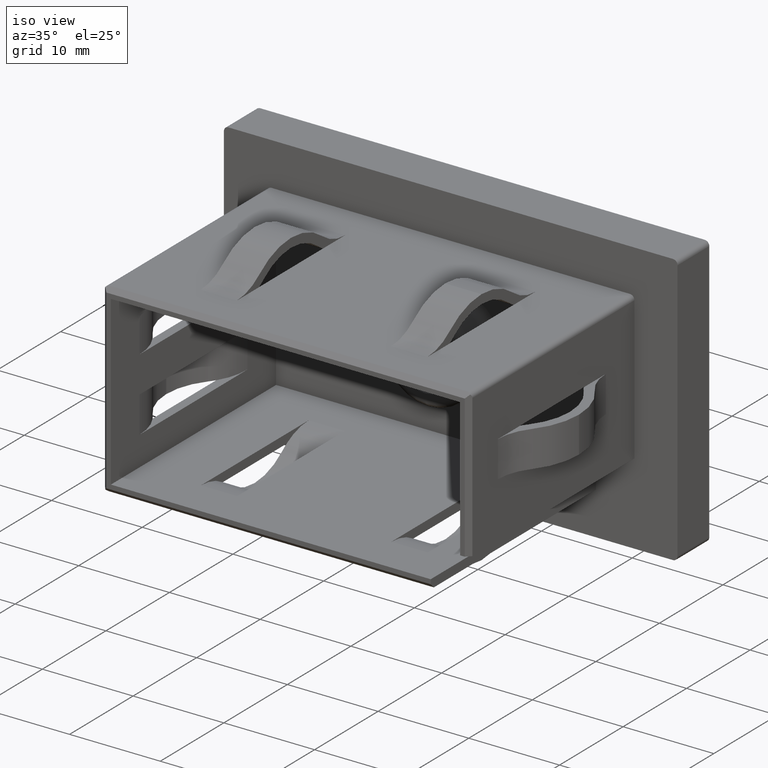
[diagram: clean part render]
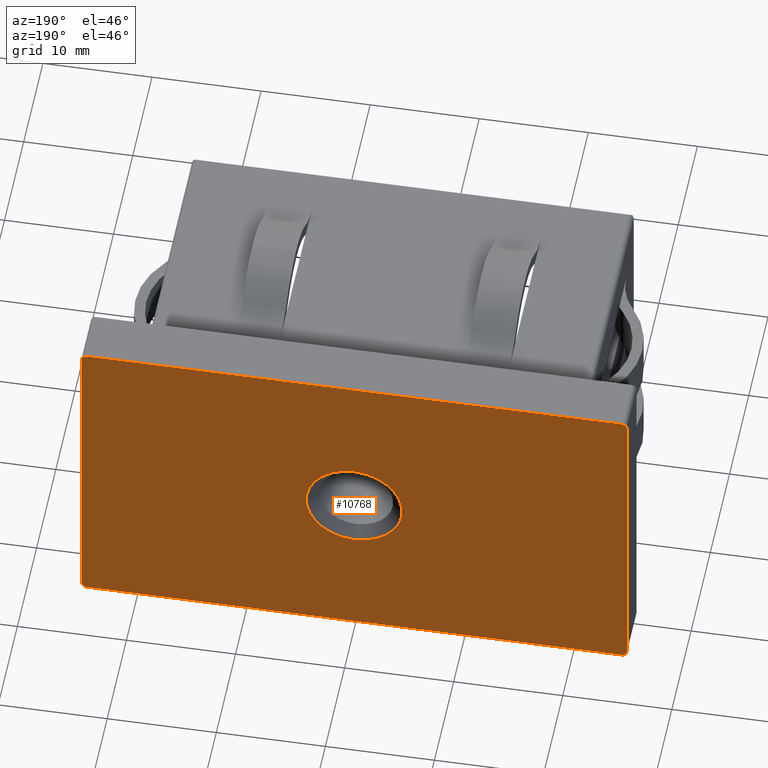
[diagram: tour spotlight — one face highlighted and labeled with its STEP entity id]
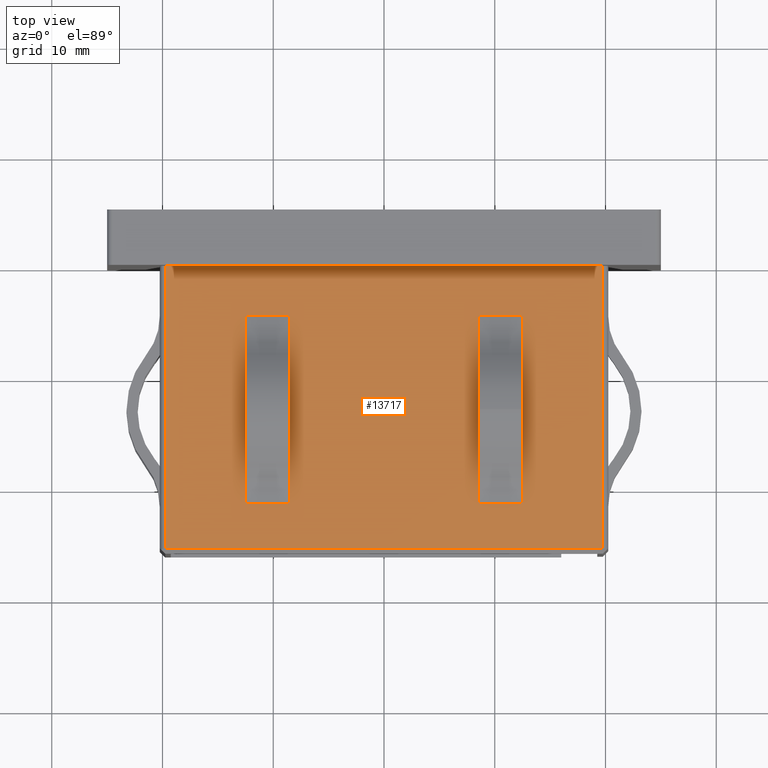
[diagram: tour spotlight — one face highlighted and labeled with its STEP entity id]
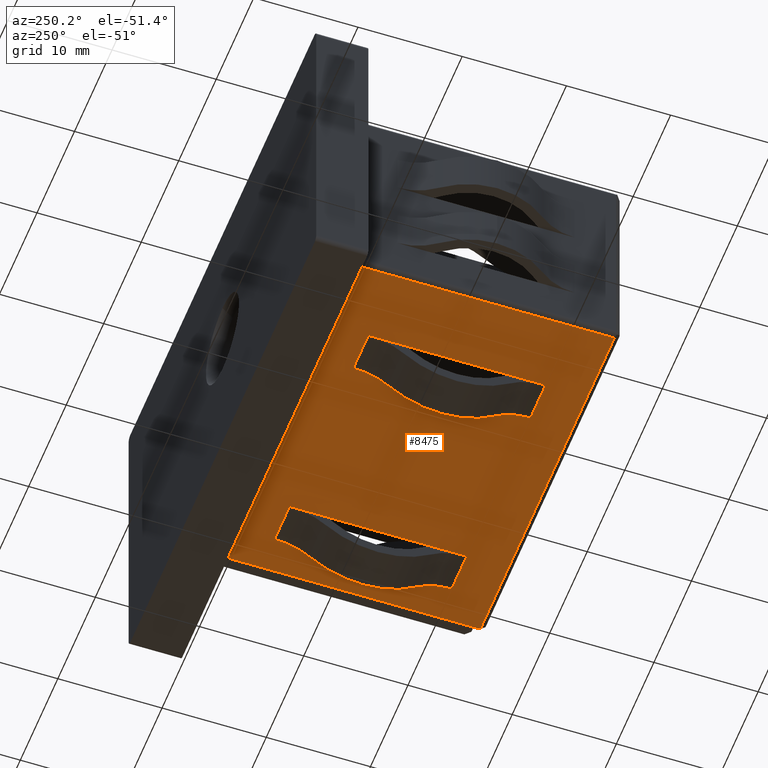
[diagram: tour spotlight — one face highlighted and labeled with its STEP entity id]
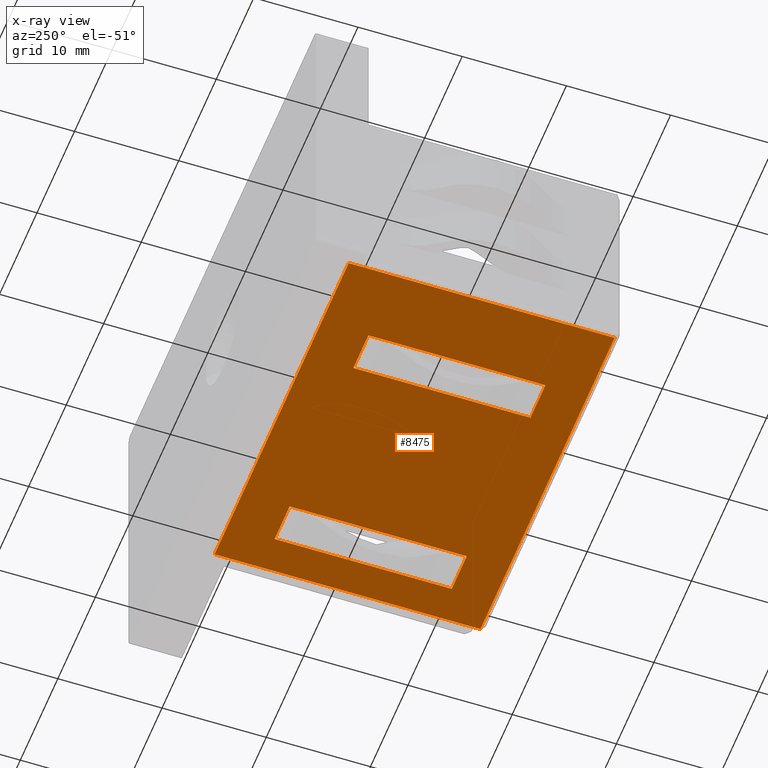
[diagram: x-ray of the same camera — body ghosted, this tour face saturated]
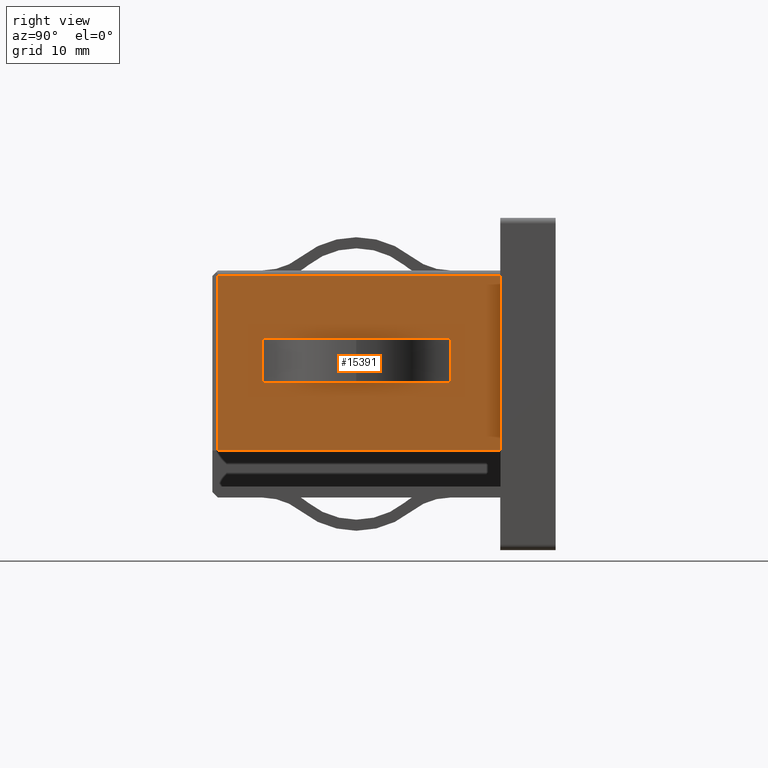
[diagram: tour spotlight — one face highlighted and labeled with its STEP entity id]
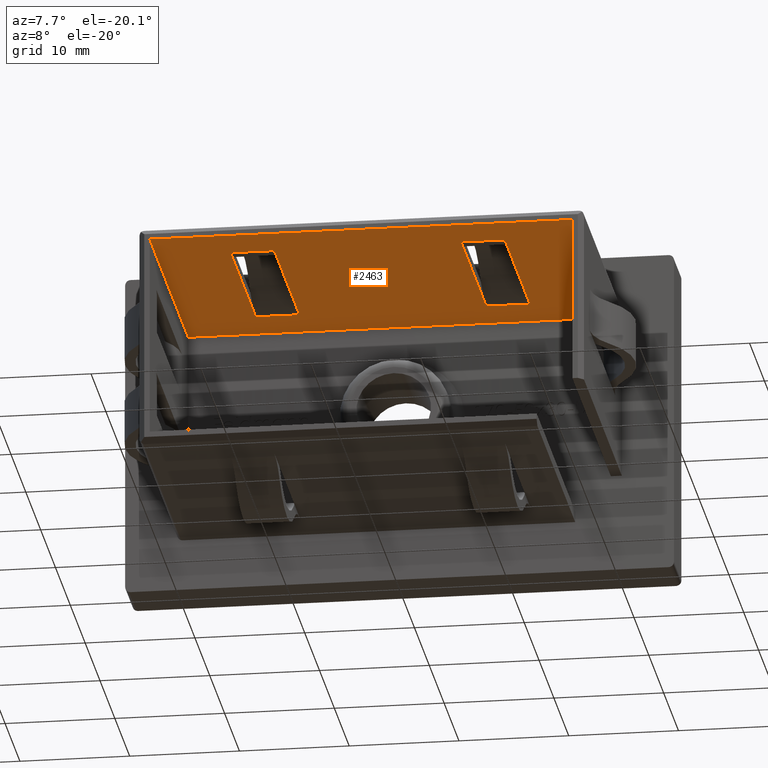
[diagram: tour spotlight — one face highlighted and labeled with its STEP entity id]
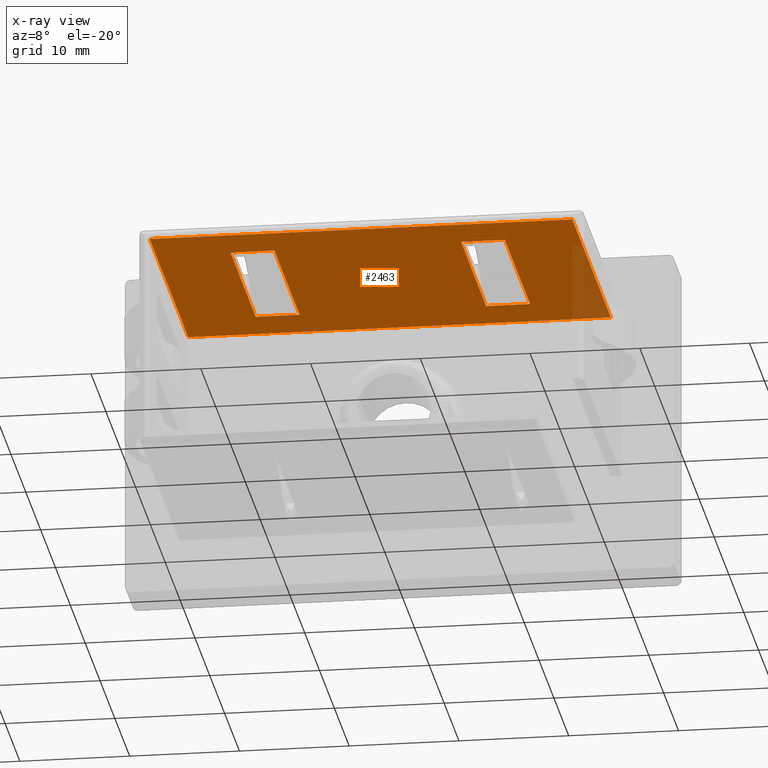
[diagram: x-ray of the same camera — body ghosted, this tour face saturated]
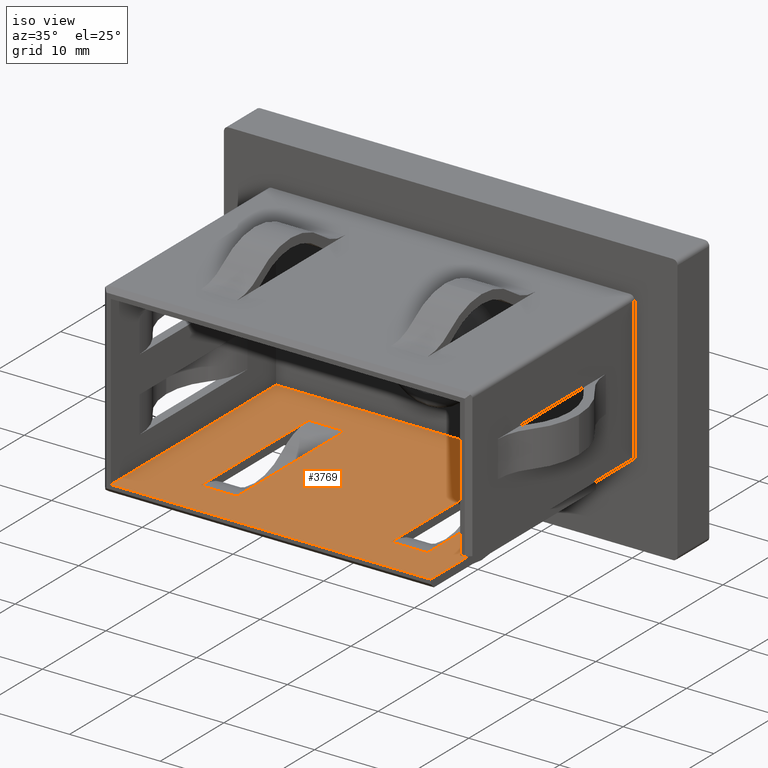
[diagram: tour spotlight — one face highlighted and labeled with its STEP entity id]
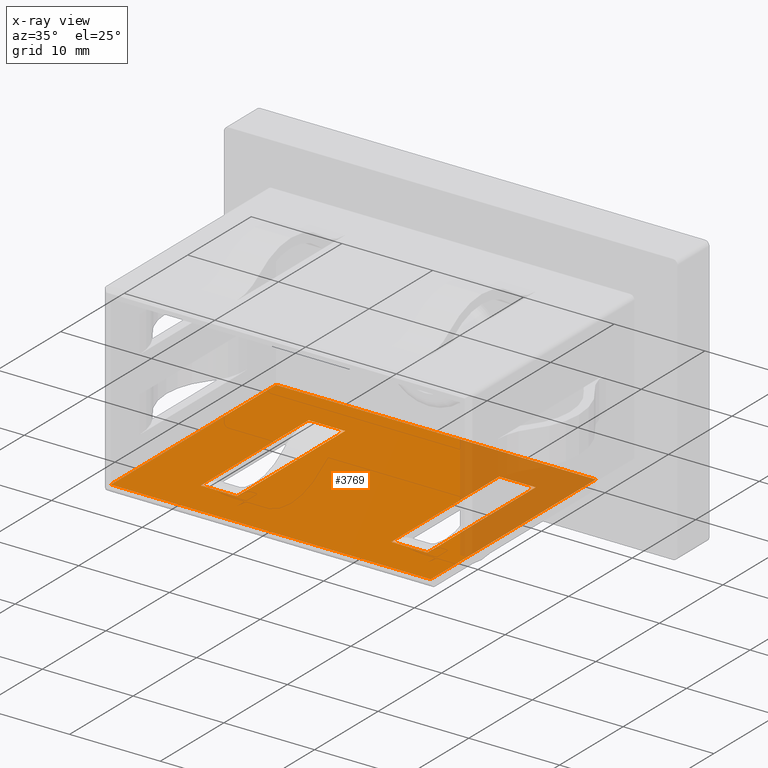
[diagram: x-ray of the same camera — body ghosted, this tour face saturated]
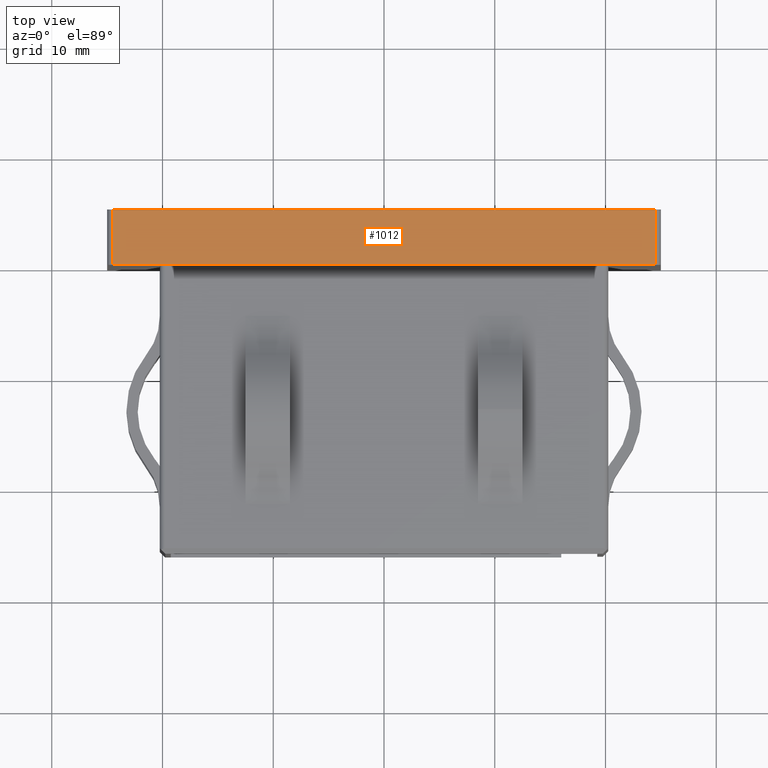
[diagram: tour spotlight — one face highlighted and labeled with its STEP entity id]
A machine part: a face-by-face anatomy tour. The part has 367 B-rep faces; the first image is the clean iso view, then the 7 largest visible faces are spotlighted one at a time (largest first), each with its STEP entity span.

Face 1 — auxiliary view, entity #10768. In plain terms, the highlighted planar face has unit normal (0, 1, 0).
Definition (entity closure, byte-faithful):
#94 = AXIS2_PLACEMENT_3D ( 'NONE', #7053, #8647, #9950 ) ;
#243 = VECTOR ( 'NONE', #17246, 1000.000000000000000 ) ;
#411 = CARTESIAN_POINT ( 'NONE',  ( 0.0000000000000000000, 5.000000000000000000, 0.0000000000000000000 ) ) ;
#1357 = CIRCLE ( 'NONE', #9868, 4.399999999999979900 ) ;
#1358 = DIRECTION ( 'NONE',  ( 0.0000000000000000000, 0.0000000000000000000, 1.000000000000000000 ) ) ;
#1776 = PLANE ( 'NONE',  #13131 ) ;
#2085 = ORIENTED_EDGE ( 'NONE', *, *, #13264, .T. ) ;
#2236 = ORIENTED_EDGE ( 'NONE', *, *, #4722, .T. ) ;
#2633 = CARTESIAN_POINT ( 'NONE',  ( -24.49999999999999600, 5.000000000000000000, 15.00000000000000000 ) ) ;
#2725 = LINE ( 'NONE', #13180, #14834 ) ;
#3056 = EDGE_CURVE ( 'NONE', #15620, #11726, #4994, .T. ) ;
#3198 = EDGE_LOOP ( 'NONE', ( #3399, #9290, #10956, #13149, #12009, #8250, #17114, #6255 ) ) ;
#3390 = VERTEX_POINT ( 'NONE', #4157 ) ;
#3399 = ORIENTED_EDGE ( 'NONE', *, *, #12831, .T. ) ;
#3463 = EDGE_CURVE ( 'NONE', #8778, #14037, #5856, .T. ) ;
#3659 = CARTESIAN_POINT ( 'NONE',  ( 0.0000000000000000000, 5.000000000000000000, 0.0000000000000000000 ) ) ;
#4157 = CARTESIAN_POINT ( 'NONE',  ( 25.00000000000000400, 5.000000000000000000, -14.49999999999999600 ) ) ;
#4233 = CARTESIAN_POINT ( 'NONE',  ( 24.50000000000000400, 5.000000000000000000, 14.50000000000000000 ) ) ;
#4534 = DIRECTION ( 'NONE',  ( 0.0000000000000000000, -0.0000000000000000000, 1.000000000000000000 ) ) ;
#4626 = VERTEX_POINT ( 'NONE', #8658 ) ;
#4722 = EDGE_CURVE ( 'NONE', #14856, #4626, #14615, .T. ) ;
#4760 = DIRECTION ( 'NONE',  ( -1.000000000000000000, -0.0000000000000000000, -0.0000000000000000000 ) ) ;
#4994 = CIRCLE ( 'NONE', #17781, 0.5000000000000004400 ) ;
#5327 = EDGE_CURVE ( 'NONE', #13428, #15620, #2725, .T. ) ;
#5493 = CARTESIAN_POINT ( 'NONE',  ( -24.49999999999999600, 5.000000000000000000, -14.99999999999999800 ) ) ;
#5856 = CIRCLE ( 'NONE', #94, 0.5000000000000004400 ) ;
#6014 = CIRCLE ( 'NONE', #10557, 0.5000000000000004400 ) ;
#6175 = CARTESIAN_POINT ( 'NONE',  ( -24.99999999999999600, 5.000000000000000000, -14.99999999999999800 ) ) ;
#6255 = ORIENTED_EDGE ( 'NONE', *, *, #8031, .T. ) ;
#6388 = DIRECTION ( 'NONE',  ( 0.0000000000000000000, 0.0000000000000000000, 1.000000000000000000 ) ) ;
#6426 = VECTOR ( 'NONE', #10370, 1000.000000000000000 ) ;
#6839 = AXIS2_PLACEMENT_3D ( 'NONE', #3659, #17813, #16414 ) ;
#6909 = FACE_OUTER_BOUND ( 'NONE', #3198, .T. ) ;
#6915 = DIRECTION ( 'NONE',  ( 0.0000000000000000000, 0.0000000000000000000, 1.000000000000000000 ) ) ;
#7018 = CARTESIAN_POINT ( 'NONE',  ( -24.99999999999999600, 5.000000000000000000, 15.00000000000000000 ) ) ;
#7053 = CARTESIAN_POINT ( 'NONE',  ( -24.49999999999999600, 5.000000000000000000, 14.49999999999999800 ) ) ;
#7149 = FACE_BOUND ( 'NONE', #8129, .T. ) ;
#7874 = VERTEX_POINT ( 'NONE', #7974 ) ;
#7974 = CARTESIAN_POINT ( 'NONE',  ( 24.50000000000000400, 5.000000000000000000, 15.00000000000000000 ) ) ;
#8023 = CARTESIAN_POINT ( 'NONE',  ( -24.99999999999999600, 5.000000000000000000, 14.50000000000000000 ) ) ;
#8031 = EDGE_CURVE ( 'NONE', #7874, #13052, #10360, .T. ) ;
#8129 = EDGE_LOOP ( 'NONE', ( #2236, #2085 ) ) ;
#8250 = ORIENTED_EDGE ( 'NONE', *, *, #3463, .T. ) ;
#8579 = CARTESIAN_POINT ( 'NONE',  ( 25.00000000000000400, 5.000000000000000000, -14.99999999999999800 ) ) ;
#8647 = DIRECTION ( 'NONE',  ( 0.0000000000000000000, 1.000000000000000000, 0.0000000000000000000 ) ) ;
#8658 = CARTESIAN_POINT ( 'NONE',  ( 5.388445916248330300E-016, 5.000000000000000000, -4.399999999999979900 ) ) ;
#8778 = VERTEX_POINT ( 'NONE', #8023 ) ;
#9107 = CARTESIAN_POINT ( 'NONE',  ( 25.00000000000000400, 5.000000000000000000, 14.50000000000000000 ) ) ;
#9290 = ORIENTED_EDGE ( 'NONE', *, *, #12102, .T. ) ;
#9868 = AXIS2_PLACEMENT_3D ( 'NONE', #11325, #12783, #1358 ) ;
#9950 = DIRECTION ( 'NONE',  ( 0.0000000000000000000, 0.0000000000000000000, 1.000000000000000000 ) ) ;
#9961 = LINE ( 'NONE', #8579, #243 ) ;
#10360 = CIRCLE ( 'NONE', #16693, 0.5000000000000004400 ) ;
#10370 = DIRECTION ( 'NONE',  ( 0.0000000000000000000, 0.0000000000000000000, 1.000000000000000000 ) ) ;
#10557 = AXIS2_PLACEMENT_3D ( 'NONE', #11226, #15275, #6915 ) ;
#10768 = ADVANCED_FACE ( 'NONE', ( #7149, #6909 ), #1776, .T. ) ;
#10956 = ORIENTED_EDGE ( 'NONE', *, *, #5327, .T. ) ;
#11151 = CARTESIAN_POINT ( 'NONE',  ( 0.0000000000000000000, 5.000000000000000000, 4.399999999999979900 ) ) ;
#11226 = CARTESIAN_POINT ( 'NONE',  ( 24.50000000000000400, 5.000000000000000000, -14.49999999999999600 ) ) ;
#11325 = CARTESIAN_POINT ( 'NONE',  ( 0.0000000000000000000, 5.000000000000000000, 0.0000000000000000000 ) ) ;
#11378 = DIRECTION ( 'NONE',  ( 0.0000000000000000000, 0.0000000000000000000, 1.000000000000000000 ) ) ;
#11726 = VERTEX_POINT ( 'NONE', #17240 ) ;
#12009 = ORIENTED_EDGE ( 'NONE', *, *, #12448, .T. ) ;
#12102 = EDGE_CURVE ( 'NONE', #3390, #13428, #6014, .T. ) ;
#12364 = LINE ( 'NONE', #6175, #6426 ) ;
#12448 = EDGE_CURVE ( 'NONE', #11726, #8778, #12364, .T. ) ;
#12546 = DIRECTION ( 'NONE',  ( 1.000000000000000000, 0.0000000000000000000, 0.0000000000000000000 ) ) ;
#12783 = DIRECTION ( 'NONE',  ( -0.0000000000000000000, -1.000000000000000000, -0.0000000000000000000 ) ) ;
#12829 = DIRECTION ( 'NONE',  ( 0.0000000000000000000, 1.000000000000000000, 0.0000000000000000000 ) ) ;
#12831 = EDGE_CURVE ( 'NONE', #13052, #3390, #9961, .T. ) ;
#12957 = DIRECTION ( 'NONE',  ( 0.0000000000000000000, 1.000000000000000000, 0.0000000000000000000 ) ) ;
#13052 = VERTEX_POINT ( 'NONE', #9107 ) ;
#13131 = AXIS2_PLACEMENT_3D ( 'NONE', #411, #12957, #4534 ) ;
#13149 = ORIENTED_EDGE ( 'NONE', *, *, #3056, .T. ) ;
#13180 = CARTESIAN_POINT ( 'NONE',  ( -24.99999999999999600, 5.000000000000000000, -14.99999999999999800 ) ) ;
#13264 = EDGE_CURVE ( 'NONE', #4626, #14856, #1357, .T. ) ;
#13402 = CARTESIAN_POINT ( 'NONE',  ( -24.49999999999999600, 5.000000000000000000, -14.49999999999999600 ) ) ;
#13428 = VERTEX_POINT ( 'NONE', #14207 ) ;
#14037 = VERTEX_POINT ( 'NONE', #2633 ) ;
#14207 = CARTESIAN_POINT ( 'NONE',  ( 24.50000000000000400, 5.000000000000000000, -14.99999999999999800 ) ) ;
#14273 = VECTOR ( 'NONE', #12546, 1000.000000000000000 ) ;
#14615 = CIRCLE ( 'NONE', #6839, 4.399999999999979900 ) ;
#14827 = DIRECTION ( 'NONE',  ( 0.0000000000000000000, 1.000000000000000000, 0.0000000000000000000 ) ) ;
#14834 = VECTOR ( 'NONE', #4760, 1000.000000000000000 ) ;
#14856 = VERTEX_POINT ( 'NONE', #11151 ) ;
#15275 = DIRECTION ( 'NONE',  ( 0.0000000000000000000, 1.000000000000000000, 0.0000000000000000000 ) ) ;
#15620 = VERTEX_POINT ( 'NONE', #5493 ) ;
#16342 = EDGE_CURVE ( 'NONE', #14037, #7874, #16940, .T. ) ;
#16414 = DIRECTION ( 'NONE',  ( 0.0000000000000000000, 0.0000000000000000000, 1.000000000000000000 ) ) ;
#16693 = AXIS2_PLACEMENT_3D ( 'NONE', #4233, #12829, #11378 ) ;
#16940 = LINE ( 'NONE', #7018, #14273 ) ;
#17114 = ORIENTED_EDGE ( 'NONE', *, *, #16342, .T. ) ;
#17240 = CARTESIAN_POINT ( 'NONE',  ( -24.99999999999999600, 5.000000000000000000, -14.49999999999999600 ) ) ;
#17246 = DIRECTION ( 'NONE',  ( -0.0000000000000000000, -0.0000000000000000000, -1.000000000000000000 ) ) ;
#17781 = AXIS2_PLACEMENT_3D ( 'NONE', #13402, #14827, #6388 ) ;
#17813 = DIRECTION ( 'NONE',  ( -0.0000000000000000000, -1.000000000000000000, -0.0000000000000000000 ) ) ;

Face 2 — top view, entity #13717. In plain terms, the highlighted planar face has unit normal (-0, 0, -1).
Definition (entity closure, byte-faithful):
#22 = CARTESIAN_POINT ( 'NONE',  ( 8.500000000000001800, -26.00000000000000000, 10.24999999999999500 ) ) ;
#175 = LINE ( 'NONE', #15817, #2163 ) ;
#294 = LINE ( 'NONE', #7184, #5823 ) ;
#329 = VERTEX_POINT ( 'NONE', #9935 ) ;
#332 = DIRECTION ( 'NONE',  ( -1.000000000000000000, 0.0000000000000000000, 0.0000000000000000000 ) ) ;
#355 = VERTEX_POINT ( 'NONE', #5507 ) ;
#379 = CARTESIAN_POINT ( 'NONE',  ( 12.50000000000000200, -18.01403362818846400, 10.24999999999999500 ) ) ;
#548 = VECTOR ( 'NONE', #2164, 1000.000000000000000 ) ;
#573 = EDGE_CURVE ( 'NONE', #355, #17736, #1624, .T. ) ;
#764 = CARTESIAN_POINT ( 'NONE',  ( 12.50000000000000400, -26.00000000000000000, 10.24999999999999500 ) ) ;
#835 = CARTESIAN_POINT ( 'NONE',  ( 8.500000000000001800, -21.50000000000000000, 10.24999999999999600 ) ) ;
#899 = CARTESIAN_POINT ( 'NONE',  ( -12.49999999999999600, -21.49999984365910400, 10.24999999999999800 ) ) ;
#930 = CARTESIAN_POINT ( 'NONE',  ( -19.74999999999999600, -26.00000000000000000, 10.24999999999999500 ) ) ;
#997 = LINE ( 'NONE', #9568, #15521 ) ;
#1134 = EDGE_CURVE ( 'NONE', #15868, #3727, #14381, .T. ) ;
#1388 = LINE ( 'NONE', #3902, #11293 ) ;
#1479 = DIRECTION ( 'NONE',  ( 1.000000000000000000, -0.0000000000000000000, -1.927470528863118800E-016 ) ) ;
#1567 = FACE_OUTER_BOUND ( 'NONE', #17110, .T. ) ;
#1613 = VERTEX_POINT ( 'NONE', #835 ) ;
#1624 = LINE ( 'NONE', #3451, #12633 ) ;
#1671 = LINE ( 'NONE', #17107, #14427 ) ;
#1685 = CARTESIAN_POINT ( 'NONE',  ( 8.500000000000001800, -18.01403362818846400, 10.24999999999999500 ) ) ;
#2163 = VECTOR ( 'NONE', #4561, 1000.000000000000000 ) ;
#2164 = DIRECTION ( 'NONE',  ( 1.000000000000000000, -0.0000000000000000000, -1.927470528863118800E-016 ) ) ;
#2229 = FACE_BOUND ( 'NONE', #4757, .T. ) ;
#2415 = CARTESIAN_POINT ( 'NONE',  ( -8.499999999999998200, -18.01403362818845700, 10.24999999999999500 ) ) ;
#2468 = EDGE_CURVE ( 'NONE', #17393, #15868, #12500, .T. ) ;
#2517 = ORIENTED_EDGE ( 'NONE', *, *, #573, .T. ) ;
#2706 = CARTESIAN_POINT ( 'NONE',  ( -19.74999999999999600, -25.50000000000000000, 10.24999999999999500 ) ) ;
#2821 = VECTOR ( 'NONE', #1479, 1000.000000000000000 ) ;
#3112 = PLANE ( 'NONE',  #9513 ) ;
#3404 = LINE ( 'NONE', #12122, #548 ) ;
#3422 = CARTESIAN_POINT ( 'NONE',  ( 12.50000000000000200, -4.500000000000000000, 10.24999999999999600 ) ) ;
#3451 = CARTESIAN_POINT ( 'NONE',  ( -12.50000000000000400, -26.00000000000000000, 10.24999999999999500 ) ) ;
#3524 = VERTEX_POINT ( 'NONE', #11362 ) ;
#3527 = ORIENTED_EDGE ( 'NONE', *, *, #5142, .T. ) ;
#3624 = VERTEX_POINT ( 'NONE', #379 ) ;
#3715 = DIRECTION ( 'NONE',  ( -4.930380657631323800E-032, 1.000000000000000000, 0.0000000000000000000 ) ) ;
#3727 = VERTEX_POINT ( 'NONE', #10535 ) ;
#3785 = EDGE_CURVE ( 'NONE', #4963, #6466, #10246, .T. ) ;
#3858 = ORIENTED_EDGE ( 'NONE', *, *, #8324, .T. ) ;
#3902 = CARTESIAN_POINT ( 'NONE',  ( 12.50000000000000200, -21.50000000000000000, 10.24999999999999600 ) ) ;
#3904 = VECTOR ( 'NONE', #15889, 1000.000000000000000 ) ;
#4044 = VECTOR ( 'NONE', #17747, 1000.000000000000000 ) ;
#4142 = LINE ( 'NONE', #17196, #3904 ) ;
#4300 = CARTESIAN_POINT ( 'NONE',  ( -8.500000000000000000, -26.00000000000000000, 10.24999999999999500 ) ) ;
#4407 = VECTOR ( 'NONE', #10610, 1000.000000000000000 ) ;
#4561 = DIRECTION ( 'NONE',  ( -4.930380657631323800E-032, -1.000000000000000000, 0.0000000000000000000 ) ) ;
#4672 = ORIENTED_EDGE ( 'NONE', *, *, #2468, .F. ) ;
#4751 = ORIENTED_EDGE ( 'NONE', *, *, #12162, .F. ) ;
#4757 = EDGE_LOOP ( 'NONE', ( #4672, #10113, #5676, #14205, #3858, #4751, #10763, #5942 ) ) ;
#4944 = CARTESIAN_POINT ( 'NONE',  ( -12.49999999999999600, -4.499999999999997300, 10.24999999999999500 ) ) ;
#4963 = VERTEX_POINT ( 'NONE', #11408 ) ;
#5070 = VERTEX_POINT ( 'NONE', #8177 ) ;
#5142 = EDGE_CURVE ( 'NONE', #6466, #9957, #294, .T. ) ;
#5403 = EDGE_CURVE ( 'NONE', #7512, #329, #7799, .T. ) ;
#5507 = CARTESIAN_POINT ( 'NONE',  ( -12.49999999999999800, -7.985966215470634600, 10.24999999999999500 ) ) ;
#5632 = DIRECTION ( 'NONE',  ( -4.930380657631323800E-032, -1.000000000000000000, 0.0000000000000000000 ) ) ;
#5676 = ORIENTED_EDGE ( 'NONE', *, *, #16191, .T. ) ;
#5702 = LINE ( 'NONE', #8581, #11416 ) ;
#5823 = VECTOR ( 'NONE', #7242, 1000.000000000000000 ) ;
#5825 = LINE ( 'NONE', #14119, #6246 ) ;
#5942 = ORIENTED_EDGE ( 'NONE', *, *, #1134, .F. ) ;
#6008 = DIRECTION ( 'NONE',  ( -0.0000000000000000000, 0.0000000000000000000, -1.000000000000000000 ) ) ;
#6152 = VERTEX_POINT ( 'NONE', #17576 ) ;
#6246 = VECTOR ( 'NONE', #18054, 1000.000000000000000 ) ;
#6325 = DIRECTION ( 'NONE',  ( -4.930380657631323800E-032, -1.000000000000000000, 0.0000000000000000000 ) ) ;
#6382 = VERTEX_POINT ( 'NONE', #15936 ) ;
#6466 = VERTEX_POINT ( 'NONE', #2706 ) ;
#6659 = ORIENTED_EDGE ( 'NONE', *, *, #5403, .T. ) ;
#6824 = VERTEX_POINT ( 'NONE', #2415 ) ;
#6898 = VECTOR ( 'NONE', #6325, 1000.000000000000000 ) ;
#7120 = CARTESIAN_POINT ( 'NONE',  ( 12.50000000000000200, -21.50000000000000000, 10.24999999999999500 ) ) ;
#7184 = CARTESIAN_POINT ( 'NONE',  ( 20.24999999999999600, -25.50000000000000000, 10.24999999999999500 ) ) ;
#7242 = DIRECTION ( 'NONE',  ( 1.000000000000000000, 0.0000000000000000000, 0.0000000000000000000 ) ) ;
#7396 = VECTOR ( 'NONE', #9839, 1000.000000000000000 ) ;
#7512 = VERTEX_POINT ( 'NONE', #899 ) ;
#7530 = DIRECTION ( 'NONE',  ( -4.930380657631323800E-032, 1.000000000000000000, 0.0000000000000000000 ) ) ;
#7633 = CARTESIAN_POINT ( 'NONE',  ( 8.500000000000001800, -4.499999999999997300, 10.24999999999999500 ) ) ;
#7799 = LINE ( 'NONE', #13426, #4044 ) ;
#8125 = LINE ( 'NONE', #15740, #2821 ) ;
#8177 = CARTESIAN_POINT ( 'NONE',  ( -8.499999999999998200, -4.500000000000000000, 10.25000000000000000 ) ) ;
#8324 = EDGE_CURVE ( 'NONE', #11107, #1613, #1388, .T. ) ;
#8437 = ORIENTED_EDGE ( 'NONE', *, *, #10394, .F. ) ;
#8581 = CARTESIAN_POINT ( 'NONE',  ( 12.50000000000000400, -26.00000000000000000, 10.24999999999999500 ) ) ;
#8625 = ORIENTED_EDGE ( 'NONE', *, *, #17093, .T. ) ;
#8901 = LINE ( 'NONE', #17404, #17506 ) ;
#9083 = LINE ( 'NONE', #22, #10177 ) ;
#9311 = EDGE_CURVE ( 'NONE', #329, #355, #17295, .T. ) ;
#9338 = EDGE_CURVE ( 'NONE', #9957, #6382, #1671, .T. ) ;
#9449 = EDGE_CURVE ( 'NONE', #7512, #6152, #3404, .T. ) ;
#9513 = AXIS2_PLACEMENT_3D ( 'NONE', #14370, #6008, #332 ) ;
#9568 = CARTESIAN_POINT ( 'NONE',  ( -8.500000000000000000, -26.00000000000000000, 10.24999999999999500 ) ) ;
#9839 = DIRECTION ( 'NONE',  ( -4.930380657631323800E-032, 1.000000000000000000, 0.0000000000000000000 ) ) ;
#9935 = CARTESIAN_POINT ( 'NONE',  ( -12.49999999999999800, -18.01403362818847100, 10.24999999999999500 ) ) ;
#9957 = VERTEX_POINT ( 'NONE', #12397 ) ;
#9971 = CARTESIAN_POINT ( 'NONE',  ( 12.50000000000000200, -7.985966215470639900, 10.24999999999999500 ) ) ;
#10070 = DIRECTION ( 'NONE',  ( 0.0000000000000000000, 1.000000000000000000, 0.0000000000000000000 ) ) ;
#10113 = ORIENTED_EDGE ( 'NONE', *, *, #16109, .T. ) ;
#10177 = VECTOR ( 'NONE', #12863, 1000.000000000000000 ) ;
#10179 = EDGE_CURVE ( 'NONE', #3727, #14466, #8901, .T. ) ;
#10246 = LINE ( 'NONE', #930, #12417 ) ;
#10394 = EDGE_CURVE ( 'NONE', #6824, #3524, #5825, .T. ) ;
#10513 = CARTESIAN_POINT ( 'NONE',  ( 8.500000000000001800, -26.00000000000000000, 10.24999999999999500 ) ) ;
#10529 = VECTOR ( 'NONE', #17646, 1000.000000000000000 ) ;
#10535 = CARTESIAN_POINT ( 'NONE',  ( 8.500000000000001800, -7.985966215470639900, 10.24999999999999500 ) ) ;
#10610 = DIRECTION ( 'NONE',  ( -4.930380657631323800E-032, -1.000000000000000000, 0.0000000000000000000 ) ) ;
#10763 = ORIENTED_EDGE ( 'NONE', *, *, #10179, .F. ) ;
#10807 = VECTOR ( 'NONE', #16870, 1000.000000000000000 ) ;
#11107 = VERTEX_POINT ( 'NONE', #7120 ) ;
#11293 = VECTOR ( 'NONE', #12511, 1000.000000000000000 ) ;
#11362 = CARTESIAN_POINT ( 'NONE',  ( -8.499999999999998200, -7.985966215470634600, 10.24999999999999500 ) ) ;
#11370 = CARTESIAN_POINT ( 'NONE',  ( 12.50000000000000200, -4.500000000000002700, 10.24999999999999600 ) ) ;
#11408 = CARTESIAN_POINT ( 'NONE',  ( -19.74999999999999600, 0.0000000000000000000, 10.24999999999999500 ) ) ;
#11416 = VECTOR ( 'NONE', #5632, 1000.000000000000000 ) ;
#11943 = ORIENTED_EDGE ( 'NONE', *, *, #16523, .T. ) ;
#12122 = CARTESIAN_POINT ( 'NONE',  ( -12.49999999999999800, -21.50000000000000000, 10.25000000000000000 ) ) ;
#12162 = EDGE_CURVE ( 'NONE', #14466, #1613, #9083, .T. ) ;
#12397 = CARTESIAN_POINT ( 'NONE',  ( 19.74999999999999600, -25.50000000000000000, 10.24999999999999500 ) ) ;
#12417 = VECTOR ( 'NONE', #13730, 1000.000000000000000 ) ;
#12500 = LINE ( 'NONE', #3422, #10529 ) ;
#12511 = DIRECTION ( 'NONE',  ( -1.000000000000000000, -0.0000000000000000000, 1.927470528863118800E-016 ) ) ;
#12575 = LINE ( 'NONE', #764, #4407 ) ;
#12633 = VECTOR ( 'NONE', #7530, 1000.000000000000000 ) ;
#12645 = ORIENTED_EDGE ( 'NONE', *, *, #9449, .F. ) ;
#12782 = LINE ( 'NONE', #4300, #10807 ) ;
#12863 = DIRECTION ( 'NONE',  ( -4.930380657631323800E-032, -1.000000000000000000, 0.0000000000000000000 ) ) ;
#13353 = VERTEX_POINT ( 'NONE', #9971 ) ;
#13387 = EDGE_CURVE ( 'NONE', #3524, #5070, #12782, .T. ) ;
#13426 = CARTESIAN_POINT ( 'NONE',  ( -12.50000000000000400, -26.00000000000000000, 10.24999999999999500 ) ) ;
#13717 = ADVANCED_FACE ( 'NONE', ( #2229, #1567, #15638 ), #3112, .F. ) ;
#13730 = DIRECTION ( 'NONE',  ( -0.0000000000000000000, -1.000000000000000000, -0.0000000000000000000 ) ) ;
#13752 = EDGE_CURVE ( 'NONE', #3624, #11107, #12575, .T. ) ;
#13917 = EDGE_CURVE ( 'NONE', #6152, #6824, #997, .T. ) ;
#14119 = CARTESIAN_POINT ( 'NONE',  ( -8.500000000000000000, -26.00000000000000000, 10.24999999999999500 ) ) ;
#14205 = ORIENTED_EDGE ( 'NONE', *, *, #13752, .T. ) ;
#14370 = CARTESIAN_POINT ( 'NONE',  ( 20.24999999999999600, -26.00000000000000000, 10.24999999999999500 ) ) ;
#14381 = LINE ( 'NONE', #10513, #6898 ) ;
#14427 = VECTOR ( 'NONE', #10070, 1000.000000000000000 ) ;
#14466 = VERTEX_POINT ( 'NONE', #1685 ) ;
#14909 = ORIENTED_EDGE ( 'NONE', *, *, #9338, .T. ) ;
#15068 = ORIENTED_EDGE ( 'NONE', *, *, #13387, .F. ) ;
#15340 = ORIENTED_EDGE ( 'NONE', *, *, #3785, .T. ) ;
#15521 = VECTOR ( 'NONE', #3715, 1000.000000000000000 ) ;
#15638 = FACE_BOUND ( 'NONE', #17662, .T. ) ;
#15740 = CARTESIAN_POINT ( 'NONE',  ( -12.49999999999999800, -4.500000000000000000, 10.25000000000000000 ) ) ;
#15773 = ORIENTED_EDGE ( 'NONE', *, *, #13917, .F. ) ;
#15817 = CARTESIAN_POINT ( 'NONE',  ( 12.50000000000000400, -26.00000000000000000, 10.24999999999999500 ) ) ;
#15868 = VERTEX_POINT ( 'NONE', #7633 ) ;
#15889 = DIRECTION ( 'NONE',  ( -1.000000000000000000, 0.0000000000000000000, 0.0000000000000000000 ) ) ;
#15936 = CARTESIAN_POINT ( 'NONE',  ( 19.74999999999999600, 0.0000000000000000000, 10.24999999999999500 ) ) ;
#16109 = EDGE_CURVE ( 'NONE', #17393, #13353, #5702, .T. ) ;
#16191 = EDGE_CURVE ( 'NONE', #13353, #3624, #175, .T. ) ;
#16523 = EDGE_CURVE ( 'NONE', #17736, #5070, #8125, .T. ) ;
#16861 = CARTESIAN_POINT ( 'NONE',  ( -12.50000000000000400, -26.00000000000000000, 10.24999999999999500 ) ) ;
#16870 = DIRECTION ( 'NONE',  ( -4.930380657631323800E-032, 1.000000000000000000, 0.0000000000000000000 ) ) ;
#17093 = EDGE_CURVE ( 'NONE', #6382, #4963, #4142, .T. ) ;
#17107 = CARTESIAN_POINT ( 'NONE',  ( 19.74999999999999600, -26.00000000000000000, 10.24999999999999500 ) ) ;
#17110 = EDGE_LOOP ( 'NONE', ( #8625, #15340, #3527, #14909 ) ) ;
#17196 = CARTESIAN_POINT ( 'NONE',  ( 20.24999999999999600, 0.0000000000000000000, 10.24999999999999500 ) ) ;
#17295 = LINE ( 'NONE', #16861, #7396 ) ;
#17346 = DIRECTION ( 'NONE',  ( -4.930380657631323800E-032, -1.000000000000000000, 0.0000000000000000000 ) ) ;
#17393 = VERTEX_POINT ( 'NONE', #11370 ) ;
#17404 = CARTESIAN_POINT ( 'NONE',  ( 8.500000000000001800, -26.00000000000000000, 10.24999999999999500 ) ) ;
#17506 = VECTOR ( 'NONE', #17346, 1000.000000000000000 ) ;
#17576 = CARTESIAN_POINT ( 'NONE',  ( -8.500000000000000000, -21.50000000000000400, 10.24999999999999500 ) ) ;
#17629 = ORIENTED_EDGE ( 'NONE', *, *, #9311, .T. ) ;
#17646 = DIRECTION ( 'NONE',  ( -1.000000000000000000, -0.0000000000000000000, 1.927470528863118800E-016 ) ) ;
#17662 = EDGE_LOOP ( 'NONE', ( #12645, #6659, #17629, #2517, #11943, #15068, #8437, #15773 ) ) ;
#17736 = VERTEX_POINT ( 'NONE', #4944 ) ;
#17747 = DIRECTION ( 'NONE',  ( -4.930380657631323800E-032, 1.000000000000000000, 0.0000000000000000000 ) ) ;
#18054 = DIRECTION ( 'NONE',  ( -4.930380657631323800E-032, 1.000000000000000000, 0.0000000000000000000 ) ) ;

Face 3 — auxiliary view, entity #8475. An x-ray twin of the same camera follows (body ghosted, this face saturated) — the face is partly hidden behind the body. In plain terms, the highlighted planar face has unit normal (0, 0, 1).
Definition (entity closure, byte-faithful):
#111 = ORIENTED_EDGE ( 'NONE', *, *, #4293, .F. ) ;
#114 = ORIENTED_EDGE ( 'NONE', *, *, #7111, .T. ) ;
#141 = CARTESIAN_POINT ( 'NONE',  ( -20.24999999999999600, -26.00000000000000000, -10.24999999999999500 ) ) ;
#145 = VECTOR ( 'NONE', #6545, 1000.000000000000000 ) ;
#246 = EDGE_CURVE ( 'NONE', #14386, #17494, #3374, .T. ) ;
#286 = VECTOR ( 'NONE', #5563, 1000.000000000000000 ) ;
#301 = ORIENTED_EDGE ( 'NONE', *, *, #246, .F. ) ;
#381 = EDGE_CURVE ( 'NONE', #11769, #12370, #2060, .T. ) ;
#508 = DIRECTION ( 'NONE',  ( -1.000000000000000000, -0.0000000000000000000, 1.927470528863118800E-016 ) ) ;
#746 = CARTESIAN_POINT ( 'NONE',  ( 8.499999999999996400, -26.00000000000000000, -10.25000000000000000 ) ) ;
#793 = DIRECTION ( 'NONE',  ( 3.697785493223491700E-032, 1.000000000000000000, -7.078218266726915900E-048 ) ) ;
#864 = ORIENTED_EDGE ( 'NONE', *, *, #1932, .F. ) ;
#981 = EDGE_CURVE ( 'NONE', #1094, #6464, #16378, .T. ) ;
#1094 = VERTEX_POINT ( 'NONE', #3139 ) ;
#1325 = ORIENTED_EDGE ( 'NONE', *, *, #981, .T. ) ;
#1450 = VERTEX_POINT ( 'NONE', #8969 ) ;
#1757 = CARTESIAN_POINT ( 'NONE',  ( 12.50000000000000400, -26.00000000000000000, -10.25000000000000200 ) ) ;
#1842 = LINE ( 'NONE', #15715, #13953 ) ;
#1932 = EDGE_CURVE ( 'NONE', #10966, #9485, #6810, .T. ) ;
#2060 = LINE ( 'NONE', #7104, #8891 ) ;
#2351 = VERTEX_POINT ( 'NONE', #10081 ) ;
#2538 = CARTESIAN_POINT ( 'NONE',  ( 12.49999999999999800, -21.50000000000000000, -10.25000000000000000 ) ) ;
#2679 = VECTOR ( 'NONE', #793, 1000.000000000000000 ) ;
#2717 = ORIENTED_EDGE ( 'NONE', *, *, #7220, .F. ) ;
#2737 = VECTOR ( 'NONE', #18045, 1000.000000000000000 ) ;
#2870 = CARTESIAN_POINT ( 'NONE',  ( -19.74999999999999600, -25.50000000000000000, -10.24999999999999500 ) ) ;
#2872 = EDGE_CURVE ( 'NONE', #1450, #15361, #9875, .T. ) ;
#3139 = CARTESIAN_POINT ( 'NONE',  ( -8.500000000000001800, -4.499999999999997300, -10.24999999999999600 ) ) ;
#3236 = VECTOR ( 'NONE', #15782, 1000.000000000000000 ) ;
#3359 = DIRECTION ( 'NONE',  ( 3.697785493223491700E-032, 1.000000000000000000, -7.078218266726915900E-048 ) ) ;
#3363 = CARTESIAN_POINT ( 'NONE',  ( -8.500000000000003600, -21.49999984365910100, -10.24999999999999800 ) ) ;
#3374 = LINE ( 'NONE', #3958, #2737 ) ;
#3563 = LINE ( 'NONE', #16587, #14361 ) ;
#3654 = CARTESIAN_POINT ( 'NONE',  ( 8.499999999999998200, -21.50000000000000000, -10.25000000000000000 ) ) ;
#3797 = LINE ( 'NONE', #13737, #14579 ) ;
#3958 = CARTESIAN_POINT ( 'NONE',  ( 8.499999999999998200, -4.499999999999994700, -10.25000000000000400 ) ) ;
#4003 = DIRECTION ( 'NONE',  ( -0.0000000000000000000, 1.000000000000000000, -0.0000000000000000000 ) ) ;
#4217 = LINE ( 'NONE', #8511, #13010 ) ;
#4293 = EDGE_CURVE ( 'NONE', #7431, #14649, #13305, .T. ) ;
#4499 = ORIENTED_EDGE ( 'NONE', *, *, #381, .T. ) ;
#4750 = CARTESIAN_POINT ( 'NONE',  ( -12.50000000000000200, -7.985966215470633700, -10.24999999999999600 ) ) ;
#4752 = LINE ( 'NONE', #746, #6745 ) ;
#4804 = ORIENTED_EDGE ( 'NONE', *, *, #12698, .T. ) ;
#4983 = CARTESIAN_POINT ( 'NONE',  ( 12.50000000000000400, -26.00000000000000000, -10.25000000000000200 ) ) ;
#5031 = ORIENTED_EDGE ( 'NONE', *, *, #15528, .T. ) ;
#5199 = EDGE_CURVE ( 'NONE', #11145, #12349, #1842, .T. ) ;
#5219 = CARTESIAN_POINT ( 'NONE',  ( -12.50000000000000200, -26.00000000000000000, -10.24999999999999600 ) ) ;
#5399 = CARTESIAN_POINT ( 'NONE',  ( 8.500000000000000000, -21.50000000000000000, -10.25000000000000000 ) ) ;
#5563 = DIRECTION ( 'NONE',  ( -1.000000000000000000, -0.0000000000000000000, 1.927470528863118800E-016 ) ) ;
#5619 = VECTOR ( 'NONE', #13767, 1000.000000000000000 ) ;
#5675 = CARTESIAN_POINT ( 'NONE',  ( -20.24999999999999600, -0.0000000000000000000, -10.24999999999999500 ) ) ;
#5840 = VECTOR ( 'NONE', #508, 1000.000000000000000 ) ;
#5961 = VECTOR ( 'NONE', #10247, 1000.000000000000000 ) ;
#6057 = CARTESIAN_POINT ( 'NONE',  ( -8.500000000000001800, -18.01403362818846100, -10.24999999999999600 ) ) ;
#6208 = CARTESIAN_POINT ( 'NONE',  ( -8.500000000000001800, -26.00000000000000000, -10.24999999999999600 ) ) ;
#6284 = DIRECTION ( 'NONE',  ( 3.697785493223491700E-032, -1.000000000000000000, -7.078218266726915900E-048 ) ) ;
#6464 = VERTEX_POINT ( 'NONE', #11323 ) ;
#6545 = DIRECTION ( 'NONE',  ( 1.000000000000000000, -0.0000000000000000000, -1.927470528863118800E-016 ) ) ;
#6623 = DIRECTION ( 'NONE',  ( 3.697785493223491700E-032, 1.000000000000000000, -7.078218266726915900E-048 ) ) ;
#6731 = DIRECTION ( 'NONE',  ( 3.697785493223491700E-032, 1.000000000000000000, -7.078218266726915900E-048 ) ) ;
#6745 = VECTOR ( 'NONE', #6284, 1000.000000000000000 ) ;
#6810 = LINE ( 'NONE', #4983, #8354 ) ;
#6958 = VECTOR ( 'NONE', #4003, 1000.000000000000000 ) ;
#7104 = CARTESIAN_POINT ( 'NONE',  ( -20.24999999999999600, -25.50000000000000000, -10.24999999999999500 ) ) ;
#7111 = EDGE_CURVE ( 'NONE', #15020, #1094, #8410, .T. ) ;
#7182 = VECTOR ( 'NONE', #13977, 1000.000000000000000 ) ;
#7220 = EDGE_CURVE ( 'NONE', #17494, #10966, #4217, .T. ) ;
#7291 = DIRECTION ( 'NONE',  ( 1.000000000000000000, 0.0000000000000000000, -1.914177628664063100E-016 ) ) ;
#7417 = CARTESIAN_POINT ( 'NONE',  ( -8.500000000000001800, -21.50000000000000000, -10.24999999999999600 ) ) ;
#7431 = VERTEX_POINT ( 'NONE', #3363 ) ;
#7484 = EDGE_CURVE ( 'NONE', #14649, #1450, #13219, .T. ) ;
#7548 = CARTESIAN_POINT ( 'NONE',  ( -8.500000000000001800, -7.985966215470633700, -10.24999999999999600 ) ) ;
#7699 = EDGE_CURVE ( 'NONE', #9485, #15587, #10146, .T. ) ;
#8176 = FACE_OUTER_BOUND ( 'NONE', #13072, .T. ) ;
#8232 = ORIENTED_EDGE ( 'NONE', *, *, #8848, .T. ) ;
#8242 = CARTESIAN_POINT ( 'NONE',  ( -19.74999999999999600, -26.00000000000000000, -10.24999999999999500 ) ) ;
#8354 = VECTOR ( 'NONE', #13155, 1000.000000000000000 ) ;
#8410 = LINE ( 'NONE', #6208, #2679 ) ;
#8475 = ADVANCED_FACE ( 'NONE', ( #10594, #8176, #16247 ), #15699, .F. ) ;
#8511 = CARTESIAN_POINT ( 'NONE',  ( 12.50000000000000400, -26.00000000000000000, -10.25000000000000200 ) ) ;
#8731 = LINE ( 'NONE', #3654, #145 ) ;
#8848 = EDGE_CURVE ( 'NONE', #2351, #10820, #11367, .T. ) ;
#8891 = VECTOR ( 'NONE', #12627, 1000.000000000000000 ) ;
#8969 = CARTESIAN_POINT ( 'NONE',  ( -12.50000000000000200, -18.01403362818846100, -10.24999999999999600 ) ) ;
#8971 = EDGE_LOOP ( 'NONE', ( #301, #11465, #12421, #9035, #13308, #10803, #864, #2717 ) ) ;
#9035 = ORIENTED_EDGE ( 'NONE', *, *, #5199, .T. ) ;
#9047 = VECTOR ( 'NONE', #6623, 1000.000000000000000 ) ;
#9217 = LINE ( 'NONE', #15145, #12748 ) ;
#9347 = LINE ( 'NONE', #8242, #5619 ) ;
#9485 = VERTEX_POINT ( 'NONE', #14836 ) ;
#9505 = ORIENTED_EDGE ( 'NONE', *, *, #14912, .F. ) ;
#9875 = LINE ( 'NONE', #11142, #12062 ) ;
#9915 = ORIENTED_EDGE ( 'NONE', *, *, #9967, .T. ) ;
#9967 = EDGE_CURVE ( 'NONE', #12370, #2351, #9347, .T. ) ;
#10081 = CARTESIAN_POINT ( 'NONE',  ( -19.74999999999999600, 0.0000000000000000000, -10.24999999999999500 ) ) ;
#10146 = LINE ( 'NONE', #1757, #5961 ) ;
#10247 = DIRECTION ( 'NONE',  ( 3.697785493223491700E-032, -1.000000000000000000, -7.078218266726915900E-048 ) ) ;
#10594 = FACE_BOUND ( 'NONE', #18019, .T. ) ;
#10713 = DIRECTION ( 'NONE',  ( 3.697785493223491700E-032, 1.000000000000000000, -7.078218266726915900E-048 ) ) ;
#10726 = ORIENTED_EDGE ( 'NONE', *, *, #2872, .F. ) ;
#10803 = ORIENTED_EDGE ( 'NONE', *, *, #7699, .F. ) ;
#10820 = VERTEX_POINT ( 'NONE', #11907 ) ;
#10966 = VERTEX_POINT ( 'NONE', #18058 ) ;
#11023 = CARTESIAN_POINT ( 'NONE',  ( 16.00000000000000700, -26.00000000000000000, -10.25000000000000200 ) ) ;
#11142 = CARTESIAN_POINT ( 'NONE',  ( -12.50000000000000200, -26.00000000000000000, -10.24999999999999600 ) ) ;
#11145 = VERTEX_POINT ( 'NONE', #15290 ) ;
#11300 = VERTEX_POINT ( 'NONE', #6057 ) ;
#11323 = CARTESIAN_POINT ( 'NONE',  ( -12.50000000000000200, -4.499999999999994700, -10.25000000000000000 ) ) ;
#11341 = CARTESIAN_POINT ( 'NONE',  ( -8.500000000000001800, -4.499999999999994700, -10.25000000000000000 ) ) ;
#11358 = DIRECTION ( 'NONE',  ( 1.914177628664063100E-016, 0.0000000000000000000, 1.000000000000000000 ) ) ;
#11367 = LINE ( 'NONE', #5675, #7182 ) ;
#11465 = ORIENTED_EDGE ( 'NONE', *, *, #17516, .T. ) ;
#11604 = EDGE_CURVE ( 'NONE', #15361, #6464, #3797, .T. ) ;
#11648 = VERTEX_POINT ( 'NONE', #18216 ) ;
#11769 = VERTEX_POINT ( 'NONE', #14460 ) ;
#11907 = CARTESIAN_POINT ( 'NONE',  ( 16.00000000000000700, 0.0000000000000000000, -10.25000000000000200 ) ) ;
#12062 = VECTOR ( 'NONE', #3359, 1000.000000000000000 ) ;
#12324 = CARTESIAN_POINT ( 'NONE',  ( 8.499999999999996400, -4.499999999999999100, -10.25000000000000500 ) ) ;
#12349 = VERTEX_POINT ( 'NONE', #5399 ) ;
#12370 = VERTEX_POINT ( 'NONE', #2870 ) ;
#12421 = ORIENTED_EDGE ( 'NONE', *, *, #14611, .T. ) ;
#12627 = DIRECTION ( 'NONE',  ( -1.000000000000000000, 0.0000000000000000000, 1.914177628664063100E-016 ) ) ;
#12668 = DIRECTION ( 'NONE',  ( 3.697785493223491700E-032, -1.000000000000000000, -7.078218266726915900E-048 ) ) ;
#12698 = EDGE_CURVE ( 'NONE', #7431, #11300, #3563, .T. ) ;
#12748 = VECTOR ( 'NONE', #10713, 1000.000000000000000 ) ;
#12919 = LINE ( 'NONE', #13063, #3236 ) ;
#13010 = VECTOR ( 'NONE', #12668, 1000.000000000000000 ) ;
#13063 = CARTESIAN_POINT ( 'NONE',  ( 8.499999999999996400, -26.00000000000000000, -10.25000000000000000 ) ) ;
#13072 = EDGE_LOOP ( 'NONE', ( #4499, #9915, #8232, #9505 ) ) ;
#13119 = DIRECTION ( 'NONE',  ( 3.697785493223491700E-032, -1.000000000000000000, -7.078218266726915900E-048 ) ) ;
#13155 = DIRECTION ( 'NONE',  ( 3.697785493223491700E-032, -1.000000000000000000, -7.078218266726915900E-048 ) ) ;
#13219 = LINE ( 'NONE', #5219, #9047 ) ;
#13305 = LINE ( 'NONE', #7417, #5840 ) ;
#13308 = ORIENTED_EDGE ( 'NONE', *, *, #17771, .T. ) ;
#13737 = CARTESIAN_POINT ( 'NONE',  ( -12.50000000000000200, -26.00000000000000000, -10.24999999999999600 ) ) ;
#13767 = DIRECTION ( 'NONE',  ( -0.0000000000000000000, 1.000000000000000000, 0.0000000000000000000 ) ) ;
#13953 = VECTOR ( 'NONE', #13119, 1000.000000000000000 ) ;
#13977 = DIRECTION ( 'NONE',  ( 1.000000000000000000, 0.0000000000000000000, -1.914177628664062900E-016 ) ) ;
#14225 = ORIENTED_EDGE ( 'NONE', *, *, #7484, .F. ) ;
#14361 = VECTOR ( 'NONE', #17984, 1000.000000000000000 ) ;
#14386 = VERTEX_POINT ( 'NONE', #12324 ) ;
#14460 = CARTESIAN_POINT ( 'NONE',  ( 16.00000000000000700, -25.50000000000000000, -10.25000000000000200 ) ) ;
#14579 = VECTOR ( 'NONE', #6731, 1000.000000000000000 ) ;
#14611 = EDGE_CURVE ( 'NONE', #11648, #11145, #4752, .T. ) ;
#14649 = VERTEX_POINT ( 'NONE', #17731 ) ;
#14836 = CARTESIAN_POINT ( 'NONE',  ( 12.49999999999999800, -18.01403362818845700, -10.25000000000000200 ) ) ;
#14912 = EDGE_CURVE ( 'NONE', #11769, #10820, #17302, .T. ) ;
#15020 = VERTEX_POINT ( 'NONE', #7548 ) ;
#15145 = CARTESIAN_POINT ( 'NONE',  ( -8.500000000000001800, -26.00000000000000000, -10.24999999999999600 ) ) ;
#15290 = CARTESIAN_POINT ( 'NONE',  ( 8.499999999999998200, -18.01403362818846100, -10.25000000000000000 ) ) ;
#15361 = VERTEX_POINT ( 'NONE', #4750 ) ;
#15528 = EDGE_CURVE ( 'NONE', #11300, #15020, #9217, .T. ) ;
#15587 = VERTEX_POINT ( 'NONE', #2538 ) ;
#15699 = PLANE ( 'NONE',  #17488 ) ;
#15715 = CARTESIAN_POINT ( 'NONE',  ( 8.499999999999996400, -26.00000000000000000, -10.25000000000000000 ) ) ;
#15717 = CARTESIAN_POINT ( 'NONE',  ( 12.50000000000000400, -4.499999999999993800, -10.25000000000000200 ) ) ;
#15782 = DIRECTION ( 'NONE',  ( 3.697785493223491700E-032, -1.000000000000000000, -7.078218266726915900E-048 ) ) ;
#16247 = FACE_BOUND ( 'NONE', #8971, .T. ) ;
#16378 = LINE ( 'NONE', #11341, #286 ) ;
#16477 = ORIENTED_EDGE ( 'NONE', *, *, #11604, .F. ) ;
#16587 = CARTESIAN_POINT ( 'NONE',  ( -8.500000000000001800, -26.00000000000000000, -10.24999999999999600 ) ) ;
#17302 = LINE ( 'NONE', #11023, #6958 ) ;
#17488 = AXIS2_PLACEMENT_3D ( 'NONE', #141, #11358, #7291 ) ;
#17494 = VERTEX_POINT ( 'NONE', #15717 ) ;
#17516 = EDGE_CURVE ( 'NONE', #14386, #11648, #12919, .T. ) ;
#17731 = CARTESIAN_POINT ( 'NONE',  ( -12.50000000000000200, -21.50000000000000000, -10.24999999999999600 ) ) ;
#17771 = EDGE_CURVE ( 'NONE', #12349, #15587, #8731, .T. ) ;
#17984 = DIRECTION ( 'NONE',  ( 3.697785493223491700E-032, 1.000000000000000000, -7.078218266726915900E-048 ) ) ;
#18019 = EDGE_LOOP ( 'NONE', ( #111, #4804, #5031, #114, #1325, #16477, #10726, #14225 ) ) ;
#18045 = DIRECTION ( 'NONE',  ( 1.000000000000000000, -0.0000000000000000000, -1.927470528863118800E-016 ) ) ;
#18058 = CARTESIAN_POINT ( 'NONE',  ( 12.49999999999999800, -7.985966215470636300, -10.25000000000000200 ) ) ;
#18216 = CARTESIAN_POINT ( 'NONE',  ( 8.499999999999998200, -7.985966215470633700, -10.25000000000000000 ) ) ;

Face 4 — right view, entity #15391. In plain terms, the highlighted planar face has unit normal (-1, 0, -0).
Definition (entity closure, byte-faithful):
#648 = EDGE_CURVE ( 'NONE', #16461, #12090, #12174, .T. ) ;
#839 = EDGE_CURVE ( 'NONE', #2189, #17541, #3358, .T. ) ;
#868 = VERTEX_POINT ( 'NONE', #8150 ) ;
#984 = CARTESIAN_POINT ( 'NONE',  ( 20.24999999999999600, -7.985966293206506500, 4.124999999999989300 ) ) ;
#1070 = ORIENTED_EDGE ( 'NONE', *, *, #7332, .T. ) ;
#1172 = VECTOR ( 'NONE', #17791, 1000.000000000000000 ) ;
#1602 = VECTOR ( 'NONE', #14707, 1000.000000000000000 ) ;
#1701 = CARTESIAN_POINT ( 'NONE',  ( 20.24999999999999600, 0.0000000000000000000, 9.749999999999994700 ) ) ;
#1836 = VECTOR ( 'NONE', #5313, 1000.000000000000000 ) ;
#2162 = CARTESIAN_POINT ( 'NONE',  ( 20.24999999999999600, -25.50000000000000000, -5.999999999999998200 ) ) ;
#2189 = VERTEX_POINT ( 'NONE', #984 ) ;
#2353 = LINE ( 'NONE', #5948, #16456 ) ;
#2640 = VERTEX_POINT ( 'NONE', #11180 ) ;
#2984 = LINE ( 'NONE', #17285, #4311 ) ;
#3210 = CARTESIAN_POINT ( 'NONE',  ( 20.24999999999999600, -26.00000000000000000, 0.1249999999999897000 ) ) ;
#3213 = EDGE_CURVE ( 'NONE', #13683, #16461, #9382, .T. ) ;
#3247 = EDGE_CURVE ( 'NONE', #7589, #6651, #2984, .T. ) ;
#3248 = ORIENTED_EDGE ( 'NONE', *, *, #17622, .F. ) ;
#3316 = VECTOR ( 'NONE', #14607, 1000.000000000000000 ) ;
#3358 = LINE ( 'NONE', #6661, #1836 ) ;
#3517 = DIRECTION ( 'NONE',  ( -0.0000000000000000000, 0.0000000000000000000, 1.000000000000000000 ) ) ;
#4158 = FACE_BOUND ( 'NONE', #5668, .T. ) ;
#4311 = VECTOR ( 'NONE', #8840, 1000.000000000000000 ) ;
#4586 = CARTESIAN_POINT ( 'NONE',  ( 20.24999999999758800, -21.49999992292215000, 0.1249999999999888400 ) ) ;
#4641 = CARTESIAN_POINT ( 'NONE',  ( 20.24999999999999600, -18.01403370679348700, 4.124999999999989300 ) ) ;
#5089 = LINE ( 'NONE', #4586, #12128 ) ;
#5110 = VECTOR ( 'NONE', #10312, 1000.000000000000000 ) ;
#5235 = CARTESIAN_POINT ( 'NONE',  ( 20.24999999999999600, -26.00000000000000000, 0.1249999999999897000 ) ) ;
#5313 = DIRECTION ( 'NONE',  ( 0.0000000000000000000, -1.000000000000000000, 0.0000000000000000000 ) ) ;
#5359 = EDGE_CURVE ( 'NONE', #6651, #2189, #9561, .T. ) ;
#5405 = CARTESIAN_POINT ( 'NONE',  ( 20.24999999999999600, 0.0000000000000000000, -5.999999999999998200 ) ) ;
#5444 = CARTESIAN_POINT ( 'NONE',  ( 20.24999999999999600, -25.50000000000000000, -5.999999999999998200 ) ) ;
#5646 = VECTOR ( 'NONE', #5845, 1000.000000000000000 ) ;
#5660 = ORIENTED_EDGE ( 'NONE', *, *, #839, .F. ) ;
#5668 = EDGE_LOOP ( 'NONE', ( #14864, #9441, #5729, #15733, #13376, #3248, #5660, #17323 ) ) ;
#5729 = ORIENTED_EDGE ( 'NONE', *, *, #11912, .T. ) ;
#5845 = DIRECTION ( 'NONE',  ( -0.0000000000000000000, -1.000000000000000000, -0.0000000000000000000 ) ) ;
#5948 = CARTESIAN_POINT ( 'NONE',  ( 20.24999999999999600, -26.00000000000000000, 4.124999999999989300 ) ) ;
#6048 = VERTEX_POINT ( 'NONE', #5405 ) ;
#6079 = DIRECTION ( 'NONE',  ( -0.0000000000000000000, -0.0000000000000000000, 1.000000000000000000 ) ) ;
#6651 = VERTEX_POINT ( 'NONE', #8882 ) ;
#6661 = CARTESIAN_POINT ( 'NONE',  ( 20.24999999999999600, -26.00000000000000000, 4.124999999999989300 ) ) ;
#6981 = EDGE_LOOP ( 'NONE', ( #1070, #8545, #13748, #9281 ) ) ;
#7057 = VECTOR ( 'NONE', #6079, 1000.000000000000000 ) ;
#7332 = EDGE_CURVE ( 'NONE', #6048, #13683, #10791, .T. ) ;
#7518 = LINE ( 'NONE', #15785, #3316 ) ;
#7589 = VERTEX_POINT ( 'NONE', #9400 ) ;
#7783 = VECTOR ( 'NONE', #9287, 1000.000000000000000 ) ;
#8150 = CARTESIAN_POINT ( 'NONE',  ( 20.24999999999758800, -21.49999992292215000, 4.124999999999989300 ) ) ;
#8426 = LINE ( 'NONE', #17391, #5110 ) ;
#8510 = CARTESIAN_POINT ( 'NONE',  ( 20.24999999999999600, -25.50000000000000000, 9.749999999999994700 ) ) ;
#8545 = ORIENTED_EDGE ( 'NONE', *, *, #3213, .T. ) ;
#8840 = DIRECTION ( 'NONE',  ( -0.0000000000000000000, -0.0000000000000000000, 1.000000000000000000 ) ) ;
#8882 = CARTESIAN_POINT ( 'NONE',  ( 20.24999999999999600, -4.500000000000003600, 4.124999999999989300 ) ) ;
#9113 = VECTOR ( 'NONE', #14914, 1000.000000000000000 ) ;
#9281 = ORIENTED_EDGE ( 'NONE', *, *, #13731, .T. ) ;
#9287 = DIRECTION ( 'NONE',  ( 0.0000000000000000000, -1.000000000000000000, 0.0000000000000000000 ) ) ;
#9382 = LINE ( 'NONE', #15857, #5646 ) ;
#9400 = CARTESIAN_POINT ( 'NONE',  ( 20.24999999999819500, -4.500000077077854300, 0.1249999999999888400 ) ) ;
#9441 = ORIENTED_EDGE ( 'NONE', *, *, #12272, .T. ) ;
#9561 = LINE ( 'NONE', #17684, #9113 ) ;
#9747 = LINE ( 'NONE', #3210, #1602 ) ;
#10108 = FACE_OUTER_BOUND ( 'NONE', #6981, .T. ) ;
#10254 = DIRECTION ( 'NONE',  ( -0.0000000000000000000, -0.0000000000000000000, 1.000000000000000000 ) ) ;
#10312 = DIRECTION ( 'NONE',  ( 0.0000000000000000000, -1.000000000000000000, 0.0000000000000000000 ) ) ;
#10429 = VERTEX_POINT ( 'NONE', #15466 ) ;
#10791 = LINE ( 'NONE', #12959, #7057 ) ;
#11180 = CARTESIAN_POINT ( 'NONE',  ( 20.24999999999999600, -18.01403370679348700, 0.1249999999999888400 ) ) ;
#11519 = LINE ( 'NONE', #5235, #7783 ) ;
#11766 = AXIS2_PLACEMENT_3D ( 'NONE', #11942, #17497, #3517 ) ;
#11912 = EDGE_CURVE ( 'NONE', #16284, #2640, #11519, .T. ) ;
#11942 = CARTESIAN_POINT ( 'NONE',  ( 20.24999999999999600, -26.00000000000000000, 10.24999999999999500 ) ) ;
#12068 = PLANE ( 'NONE',  #11766 ) ;
#12090 = VERTEX_POINT ( 'NONE', #5444 ) ;
#12128 = VECTOR ( 'NONE', #10254, 1000.000000000000000 ) ;
#12174 = LINE ( 'NONE', #2162, #1172 ) ;
#12182 = CARTESIAN_POINT ( 'NONE',  ( 20.24999999999999600, -7.985966293206506500, 0.1249999999999888400 ) ) ;
#12272 = EDGE_CURVE ( 'NONE', #7589, #16284, #9747, .T. ) ;
#12427 = EDGE_CURVE ( 'NONE', #2640, #10429, #8426, .T. ) ;
#12959 = CARTESIAN_POINT ( 'NONE',  ( 20.24999999999999600, 0.0000000000000000000, 10.24999999999999500 ) ) ;
#13376 = ORIENTED_EDGE ( 'NONE', *, *, #13638, .T. ) ;
#13638 = EDGE_CURVE ( 'NONE', #10429, #868, #5089, .T. ) ;
#13683 = VERTEX_POINT ( 'NONE', #1701 ) ;
#13731 = EDGE_CURVE ( 'NONE', #12090, #6048, #7518, .T. ) ;
#13748 = ORIENTED_EDGE ( 'NONE', *, *, #648, .T. ) ;
#14487 = DIRECTION ( 'NONE',  ( 0.0000000000000000000, -1.000000000000000000, 0.0000000000000000000 ) ) ;
#14607 = DIRECTION ( 'NONE',  ( -0.0000000000000000000, 1.000000000000000000, -0.0000000000000000000 ) ) ;
#14707 = DIRECTION ( 'NONE',  ( 0.0000000000000000000, -1.000000000000000000, 0.0000000000000000000 ) ) ;
#14864 = ORIENTED_EDGE ( 'NONE', *, *, #3247, .F. ) ;
#14914 = DIRECTION ( 'NONE',  ( 0.0000000000000000000, -1.000000000000000000, 0.0000000000000000000 ) ) ;
#15391 = ADVANCED_FACE ( 'NONE', ( #10108, #4158 ), #12068, .F. ) ;
#15466 = CARTESIAN_POINT ( 'NONE',  ( 20.24999999999999600, -21.49999992292215000, 0.1249999999999879700 ) ) ;
#15733 = ORIENTED_EDGE ( 'NONE', *, *, #12427, .T. ) ;
#15785 = CARTESIAN_POINT ( 'NONE',  ( 20.24999999999999600, -26.00000000000000000, -5.999999999999998200 ) ) ;
#15857 = CARTESIAN_POINT ( 'NONE',  ( 20.24999999999999600, -26.00000000000000000, 9.749999999999994700 ) ) ;
#16284 = VERTEX_POINT ( 'NONE', #12182 ) ;
#16456 = VECTOR ( 'NONE', #14487, 1000.000000000000000 ) ;
#16461 = VERTEX_POINT ( 'NONE', #8510 ) ;
#17285 = CARTESIAN_POINT ( 'NONE',  ( 20.24999999999759500, -4.500000000000003600, 0.1249999999999888400 ) ) ;
#17323 = ORIENTED_EDGE ( 'NONE', *, *, #5359, .F. ) ;
#17391 = CARTESIAN_POINT ( 'NONE',  ( 20.24999999999999600, -26.00000000000000000, 0.1249999999999897000 ) ) ;
#17497 = DIRECTION ( 'NONE',  ( -1.000000000000000000, 0.0000000000000000000, -0.0000000000000000000 ) ) ;
#17541 = VERTEX_POINT ( 'NONE', #4641 ) ;
#17622 = EDGE_CURVE ( 'NONE', #17541, #868, #2353, .T. ) ;
#17684 = CARTESIAN_POINT ( 'NONE',  ( 20.24999999999999600, -26.00000000000000000, 4.124999999999989300 ) ) ;
#17791 = DIRECTION ( 'NONE',  ( 0.0000000000000000000, 0.0000000000000000000, -1.000000000000000000 ) ) ;

Face 5 — auxiliary view, entity #2463. An x-ray twin of the same camera follows (body ghosted, this face saturated) — the face is partly hidden behind the body. In plain terms, the highlighted planar face has unit normal (-0, 0, 1).
Definition (entity closure, byte-faithful):
#328 = DIRECTION ( 'NONE',  ( 1.000000000000000000, -0.0000000000000000000, -1.927470528863118800E-016 ) ) ;
#334 = CARTESIAN_POINT ( 'NONE',  ( 19.25000000000000000, -26.00000000000000000, 9.250000000000001800 ) ) ;
#374 = EDGE_CURVE ( 'NONE', #14471, #5365, #9334, .T. ) ;
#391 = CARTESIAN_POINT ( 'NONE',  ( 8.500000000000001800, -21.50000000000000000, 9.249999999999991100 ) ) ;
#484 = CARTESIAN_POINT ( 'NONE',  ( 8.500000000000001800, -21.50000000000000000, 9.249999999999991100 ) ) ;
#566 = VECTOR ( 'NONE', #12589, 1000.000000000000000 ) ;
#685 = VECTOR ( 'NONE', #13609, 1000.000000000000000 ) ;
#693 = ORIENTED_EDGE ( 'NONE', *, *, #5917, .T. ) ;
#831 = DIRECTION ( 'NONE',  ( 1.000000000000000000, 0.0000000000000000000, 9.011550524554843200E-017 ) ) ;
#1108 = EDGE_CURVE ( 'NONE', #9181, #17941, #4465, .T. ) ;
#1178 = CARTESIAN_POINT ( 'NONE',  ( -8.499999999999998200, -6.607255592323430500E-015, 9.250000000000010700 ) ) ;
#1261 = VECTOR ( 'NONE', #6006, 1000.000000000000000 ) ;
#1376 = VECTOR ( 'NONE', #328, 1000.000000000000000 ) ;
#1784 = CARTESIAN_POINT ( 'NONE',  ( 8.500000000000001800, -6.607255592323430500E-015, 9.250000000000007100 ) ) ;
#1858 = VERTEX_POINT ( 'NONE', #12975 ) ;
#2307 = ORIENTED_EDGE ( 'NONE', *, *, #12510, .T. ) ;
#2435 = ORIENTED_EDGE ( 'NONE', *, *, #5551, .F. ) ;
#2463 = ADVANCED_FACE ( 'NONE', ( #6570, #6338, #17374 ), #16299, .F. ) ;
#2631 = CARTESIAN_POINT ( 'NONE',  ( -8.499999999999998200, -21.50000000000000000, 9.249999999999994700 ) ) ;
#2955 = VERTEX_POINT ( 'NONE', #11871 ) ;
#3551 = ORIENTED_EDGE ( 'NONE', *, *, #13099, .T. ) ;
#3578 = VECTOR ( 'NONE', #4262, 1000.000000000000000 ) ;
#4262 = DIRECTION ( 'NONE',  ( -0.0000000000000000000, 1.000000000000000000, -0.0000000000000000000 ) ) ;
#4313 = LINE ( 'NONE', #2631, #566 ) ;
#4465 = LINE ( 'NONE', #8921, #15261 ) ;
#5180 = DIRECTION ( 'NONE',  ( 1.000000000000000000, -0.0000000000000000000, 9.011550524554840700E-017 ) ) ;
#5365 = VERTEX_POINT ( 'NONE', #13618 ) ;
#5551 = EDGE_CURVE ( 'NONE', #16722, #2955, #7566, .T. ) ;
#5605 = VECTOR ( 'NONE', #12747, 1000.000000000000000 ) ;
#5826 = ORIENTED_EDGE ( 'NONE', *, *, #9228, .F. ) ;
#5841 = EDGE_CURVE ( 'NONE', #6324, #16663, #10193, .T. ) ;
#5917 = EDGE_CURVE ( 'NONE', #9181, #15872, #10418, .T. ) ;
#6006 = DIRECTION ( 'NONE',  ( -6.230555758853884400E-032, -1.000000000000000000, -7.142979018728026000E-016 ) ) ;
#6324 = VERTEX_POINT ( 'NONE', #11630 ) ;
#6338 = FACE_OUTER_BOUND ( 'NONE', #17077, .T. ) ;
#6371 = DIRECTION ( 'NONE',  ( -9.011550524554843200E-017, 0.0000000000000000000, 1.000000000000000000 ) ) ;
#6570 = FACE_BOUND ( 'NONE', #12289, .T. ) ;
#6803 = EDGE_CURVE ( 'NONE', #6324, #9550, #9724, .T. ) ;
#6816 = ORIENTED_EDGE ( 'NONE', *, *, #17477, .T. ) ;
#6889 = CARTESIAN_POINT ( 'NONE',  ( -8.499999999999998200, -4.499999999999994700, 9.250000000000007100 ) ) ;
#7123 = CARTESIAN_POINT ( 'NONE',  ( 12.50000000000000200, -21.50000000000000000, 9.249999999999991100 ) ) ;
#7130 = VECTOR ( 'NONE', #10338, 1000.000000000000000 ) ;
#7287 = ORIENTED_EDGE ( 'NONE', *, *, #1108, .F. ) ;
#7415 = CARTESIAN_POINT ( 'NONE',  ( -19.25000000000000400, -26.00000000000000000, 9.249999999999998200 ) ) ;
#7566 = LINE ( 'NONE', #8462, #3578 ) ;
#7682 = CARTESIAN_POINT ( 'NONE',  ( 19.25000000000000000, -26.00000000000000000, 9.250000000000001800 ) ) ;
#8462 = CARTESIAN_POINT ( 'NONE',  ( 19.25000000000000000, -26.00000000000000000, 9.250000000000001800 ) ) ;
#8487 = ORIENTED_EDGE ( 'NONE', *, *, #16679, .F. ) ;
#8921 = CARTESIAN_POINT ( 'NONE',  ( 8.500000000000001800, -4.499999999999994700, 9.250000000000003600 ) ) ;
#9181 = VERTEX_POINT ( 'NONE', #17951 ) ;
#9228 = EDGE_CURVE ( 'NONE', #9550, #1858, #4313, .T. ) ;
#9334 = LINE ( 'NONE', #15333, #5605 ) ;
#9542 = ORIENTED_EDGE ( 'NONE', *, *, #5841, .T. ) ;
#9550 = VERTEX_POINT ( 'NONE', #12354 ) ;
#9607 = EDGE_LOOP ( 'NONE', ( #10740, #9542, #6816, #5826 ) ) ;
#9724 = LINE ( 'NONE', #1178, #685 ) ;
#9841 = DIRECTION ( 'NONE',  ( -2.130520733491785900E-031, -1.000000000000000000, -7.142979018728026000E-016 ) ) ;
#10193 = LINE ( 'NONE', #6889, #7130 ) ;
#10252 = CARTESIAN_POINT ( 'NONE',  ( -12.49999999999999800, -6.607255592323430500E-015, 9.250000000000010700 ) ) ;
#10338 = DIRECTION ( 'NONE',  ( -1.000000000000000000, -0.0000000000000000000, 1.927470528863118800E-016 ) ) ;
#10418 = LINE ( 'NONE', #1784, #11515 ) ;
#10740 = ORIENTED_EDGE ( 'NONE', *, *, #6803, .F. ) ;
#10755 = ORIENTED_EDGE ( 'NONE', *, *, #374, .T. ) ;
#10828 = CARTESIAN_POINT ( 'NONE',  ( 19.25000000000000000, 0.0000000000000000000, 9.250000000000001800 ) ) ;
#11311 = CARTESIAN_POINT ( 'NONE',  ( -12.49999999999999800, -4.499999999999994700, 9.250000000000007100 ) ) ;
#11515 = VECTOR ( 'NONE', #13027, 1000.000000000000000 ) ;
#11630 = CARTESIAN_POINT ( 'NONE',  ( -8.499999999999998200, -4.499999999999994700, 9.250000000000007100 ) ) ;
#11871 = CARTESIAN_POINT ( 'NONE',  ( 19.25000000000000000, 0.0000000000000000000, 9.250000000000001800 ) ) ;
#12289 = EDGE_LOOP ( 'NONE', ( #693, #2307, #8487, #7287 ) ) ;
#12354 = CARTESIAN_POINT ( 'NONE',  ( -8.499999999999998200, -21.50000000000000000, 9.249999999999994700 ) ) ;
#12393 = VERTEX_POINT ( 'NONE', #7123 ) ;
#12510 = EDGE_CURVE ( 'NONE', #15872, #12393, #16584, .T. ) ;
#12589 = DIRECTION ( 'NONE',  ( -1.000000000000000000, -0.0000000000000000000, 1.927470528863118800E-016 ) ) ;
#12642 = ORIENTED_EDGE ( 'NONE', *, *, #17745, .F. ) ;
#12747 = DIRECTION ( 'NONE',  ( -0.0000000000000000000, 1.000000000000000000, -0.0000000000000000000 ) ) ;
#12975 = CARTESIAN_POINT ( 'NONE',  ( -12.50000000000000000, -21.50000000000000400, 9.249999999999998200 ) ) ;
#13027 = DIRECTION ( 'NONE',  ( -2.130520733491785900E-031, -1.000000000000000000, -7.142979018728026000E-016 ) ) ;
#13099 = EDGE_CURVE ( 'NONE', #5365, #2955, #14566, .T. ) ;
#13609 = DIRECTION ( 'NONE',  ( -6.230555758853884400E-032, -1.000000000000000000, -7.142979018728026000E-016 ) ) ;
#13618 = CARTESIAN_POINT ( 'NONE',  ( -19.25000000000000400, 0.0000000000000000000, 9.249999999999998200 ) ) ;
#13828 = CARTESIAN_POINT ( 'NONE',  ( 12.50000000000000200, -6.607255592323430500E-015, 9.250000000000007100 ) ) ;
#14471 = VERTEX_POINT ( 'NONE', #7415 ) ;
#14566 = LINE ( 'NONE', #10828, #15011 ) ;
#14605 = CARTESIAN_POINT ( 'NONE',  ( 19.25000000000000000, -26.00000000000000000, 9.250000000000001800 ) ) ;
#14688 = LINE ( 'NONE', #13828, #17792 ) ;
#14974 = DIRECTION ( 'NONE',  ( 1.000000000000000000, -0.0000000000000000000, 9.011550524554840700E-017 ) ) ;
#15011 = VECTOR ( 'NONE', #5180, 1000.000000000000000 ) ;
#15116 = VECTOR ( 'NONE', #14974, 1000.000000000000000 ) ;
#15261 = VECTOR ( 'NONE', #17422, 1000.000000000000000 ) ;
#15333 = CARTESIAN_POINT ( 'NONE',  ( -19.25000000000000400, -26.00000000000000000, 9.249999999999998200 ) ) ;
#15778 = AXIS2_PLACEMENT_3D ( 'NONE', #7682, #6371, #831 ) ;
#15872 = VERTEX_POINT ( 'NONE', #484 ) ;
#16299 = PLANE ( 'NONE',  #15778 ) ;
#16584 = LINE ( 'NONE', #391, #1376 ) ;
#16663 = VERTEX_POINT ( 'NONE', #11311 ) ;
#16671 = LINE ( 'NONE', #14605, #15116 ) ;
#16679 = EDGE_CURVE ( 'NONE', #17941, #12393, #14688, .T. ) ;
#16722 = VERTEX_POINT ( 'NONE', #334 ) ;
#17077 = EDGE_LOOP ( 'NONE', ( #3551, #2435, #12642, #10755 ) ) ;
#17374 = FACE_BOUND ( 'NONE', #9607, .T. ) ;
#17422 = DIRECTION ( 'NONE',  ( 1.000000000000000000, -0.0000000000000000000, -1.927470528863118800E-016 ) ) ;
#17477 = EDGE_CURVE ( 'NONE', #16663, #1858, #17769, .T. ) ;
#17562 = CARTESIAN_POINT ( 'NONE',  ( 12.50000000000000200, -4.499999999999997300, 9.250000000000001800 ) ) ;
#17745 = EDGE_CURVE ( 'NONE', #14471, #16722, #16671, .T. ) ;
#17769 = LINE ( 'NONE', #10252, #1261 ) ;
#17792 = VECTOR ( 'NONE', #9841, 1000.000000000000000 ) ;
#17941 = VERTEX_POINT ( 'NONE', #17562 ) ;
#17951 = CARTESIAN_POINT ( 'NONE',  ( 8.500000000000001800, -4.499999999999994700, 9.250000000000003600 ) ) ;

Face 6 — iso view, entity #3769. An x-ray twin of the same camera follows (body ghosted, this face saturated) — the face is partly hidden behind the body. In plain terms, the highlighted planar face has unit normal (-0, 0, -1).
Definition (entity closure, byte-faithful):
#43 = LINE ( 'NONE', #798, #5329 ) ;
#60 = VECTOR ( 'NONE', #15879, 1000.000000000000000 ) ;
#194 = LINE ( 'NONE', #7279, #11214 ) ;
#497 = VECTOR ( 'NONE', #5254, 1000.000000000000000 ) ;
#539 = CARTESIAN_POINT ( 'NONE',  ( -12.50000000000000200, -4.499999999999993800, -9.249999999999998200 ) ) ;
#798 = CARTESIAN_POINT ( 'NONE',  ( -8.500000000000001800, 3.882674767884666600E-031, -9.249999999999998200 ) ) ;
#894 = ORIENTED_EDGE ( 'NONE', *, *, #1250, .F. ) ;
#908 = DIRECTION ( 'NONE',  ( -1.000000000000000000, -0.0000000000000000000, 9.842402700577628300E-017 ) ) ;
#1060 = VECTOR ( 'NONE', #908, 1000.000000000000000 ) ;
#1250 = EDGE_CURVE ( 'NONE', #7376, #3650, #6590, .T. ) ;
#1426 = LINE ( 'NONE', #11740, #16850 ) ;
#1441 = LINE ( 'NONE', #7391, #8501 ) ;
#1473 = VERTEX_POINT ( 'NONE', #539 ) ;
#1537 = VERTEX_POINT ( 'NONE', #10932 ) ;
#1820 = EDGE_CURVE ( 'NONE', #7376, #1537, #194, .T. ) ;
#2055 = VERTEX_POINT ( 'NONE', #10642 ) ;
#2928 = DIRECTION ( 'NONE',  ( -0.0000000000000000000, 1.000000000000000000, -0.0000000000000000000 ) ) ;
#2968 = LINE ( 'NONE', #5431, #16633 ) ;
#3072 = ORIENTED_EDGE ( 'NONE', *, *, #3893, .T. ) ;
#3074 = VECTOR ( 'NONE', #11138, 1000.000000000000000 ) ;
#3461 = DIRECTION ( 'NONE',  ( -1.000000000000000000, 0.0000000000000000000, 9.842402700577630800E-017 ) ) ;
#3632 = DIRECTION ( 'NONE',  ( 3.697785493223491700E-032, 1.000000000000000000, -7.127372560245852200E-048 ) ) ;
#3650 = VERTEX_POINT ( 'NONE', #10242 ) ;
#3769 = ADVANCED_FACE ( 'NONE', ( #11364, #5411, #5205 ), #13418, .F. ) ;
#3893 = EDGE_CURVE ( 'NONE', #9255, #2055, #2968, .T. ) ;
#3927 = CARTESIAN_POINT ( 'NONE',  ( -19.25000000000000000, -26.00000000000000000, -9.249999999999998200 ) ) ;
#4292 = LINE ( 'NONE', #9367, #9578 ) ;
#4320 = EDGE_CURVE ( 'NONE', #1473, #7085, #4292, .T. ) ;
#4493 = EDGE_LOOP ( 'NONE', ( #4767, #10673, #894, #5773 ) ) ;
#4520 = CARTESIAN_POINT ( 'NONE',  ( 12.49999999999999800, -4.499999999999993800, -9.250000000000001800 ) ) ;
#4650 = CARTESIAN_POINT ( 'NONE',  ( -8.500000000000001800, -21.50000000000000000, -9.250000000000000000 ) ) ;
#4767 = ORIENTED_EDGE ( 'NONE', *, *, #15931, .T. ) ;
#5114 = EDGE_CURVE ( 'NONE', #3650, #17703, #12845, .T. ) ;
#5192 = ORIENTED_EDGE ( 'NONE', *, *, #11595, .F. ) ;
#5205 = FACE_BOUND ( 'NONE', #11058, .T. ) ;
#5254 = DIRECTION ( 'NONE',  ( 1.000000000000000000, -0.0000000000000000000, -1.927470528863118800E-016 ) ) ;
#5329 = VECTOR ( 'NONE', #3632, 1000.000000000000000 ) ;
#5411 = FACE_OUTER_BOUND ( 'NONE', #4493, .T. ) ;
#5431 = CARTESIAN_POINT ( 'NONE',  ( 12.49999999999999800, -21.50000000000000000, -9.250000000000001800 ) ) ;
#5709 = CARTESIAN_POINT ( 'NONE',  ( -19.25000000000000000, -26.00000000000000000, -9.249999999999998200 ) ) ;
#5773 = ORIENTED_EDGE ( 'NONE', *, *, #1820, .T. ) ;
#6126 = ORIENTED_EDGE ( 'NONE', *, *, #9835, .T. ) ;
#6400 = CARTESIAN_POINT ( 'NONE',  ( 12.49999999999999800, -4.499999999999993800, -9.250000000000001800 ) ) ;
#6408 = CARTESIAN_POINT ( 'NONE',  ( -19.25000000000000000, -26.00000000000000000, -9.249999999999998200 ) ) ;
#6507 = CARTESIAN_POINT ( 'NONE',  ( -19.25000000000000000, -0.0000000000000000000, -9.249999999999998200 ) ) ;
#6590 = LINE ( 'NONE', #3927, #3074 ) ;
#7085 = VERTEX_POINT ( 'NONE', #17478 ) ;
#7279 = CARTESIAN_POINT ( 'NONE',  ( 16.00000000000000400, -26.00000000000000000, -9.250000000000001800 ) ) ;
#7370 = DIRECTION ( 'NONE',  ( -1.000000000000000000, -0.0000000000000000000, 1.927470528863118800E-016 ) ) ;
#7376 = VERTEX_POINT ( 'NONE', #12905 ) ;
#7391 = CARTESIAN_POINT ( 'NONE',  ( 8.499999999999998200, 3.882674767884666600E-031, -9.250000000000001800 ) ) ;
#7553 = LINE ( 'NONE', #10101, #60 ) ;
#8133 = VERTEX_POINT ( 'NONE', #4650 ) ;
#8501 = VECTOR ( 'NONE', #13328, 1000.000000000000000 ) ;
#8998 = ORIENTED_EDGE ( 'NONE', *, *, #9813, .T. ) ;
#9255 = VERTEX_POINT ( 'NONE', #16980 ) ;
#9367 = CARTESIAN_POINT ( 'NONE',  ( -12.50000000000000200, -4.499999999999993800, -9.249999999999998200 ) ) ;
#9578 = VECTOR ( 'NONE', #10534, 1000.000000000000000 ) ;
#9813 = EDGE_CURVE ( 'NONE', #2055, #14157, #1441, .T. ) ;
#9835 = EDGE_CURVE ( 'NONE', #15823, #1473, #1426, .T. ) ;
#10101 = CARTESIAN_POINT ( 'NONE',  ( 12.49999999999999800, 3.882674767884666600E-031, -9.250000000000001800 ) ) ;
#10242 = CARTESIAN_POINT ( 'NONE',  ( -19.25000000000000000, -26.00000000000000000, -9.249999999999998200 ) ) ;
#10287 = DIRECTION ( 'NONE',  ( -0.0000000000000000000, 1.000000000000000000, -0.0000000000000000000 ) ) ;
#10534 = DIRECTION ( 'NONE',  ( 1.000000000000000000, -0.0000000000000000000, -1.927470528863118800E-016 ) ) ;
#10642 = CARTESIAN_POINT ( 'NONE',  ( 8.499999999999998200, -21.50000000000000000, -9.250000000000001800 ) ) ;
#10673 = ORIENTED_EDGE ( 'NONE', *, *, #5114, .F. ) ;
#10932 = CARTESIAN_POINT ( 'NONE',  ( 16.00000000000000400, 0.0000000000000000000, -9.250000000000001800 ) ) ;
#11058 = EDGE_LOOP ( 'NONE', ( #16348, #3072, #8998, #16580 ) ) ;
#11138 = DIRECTION ( 'NONE',  ( -1.000000000000000000, -0.0000000000000000000, 9.842402700577628300E-017 ) ) ;
#11214 = VECTOR ( 'NONE', #10287, 1000.000000000000000 ) ;
#11264 = LINE ( 'NONE', #4520, #15432 ) ;
#11364 = FACE_BOUND ( 'NONE', #11624, .T. ) ;
#11391 = CARTESIAN_POINT ( 'NONE',  ( -12.50000000000000200, -21.50000000000000000, -9.249999999999998200 ) ) ;
#11413 = ORIENTED_EDGE ( 'NONE', *, *, #4320, .T. ) ;
#11432 = LINE ( 'NONE', #6507, #1060 ) ;
#11488 = CARTESIAN_POINT ( 'NONE',  ( 8.500000000000000000, -4.499999999999993800, -9.250000000000001800 ) ) ;
#11595 = EDGE_CURVE ( 'NONE', #15823, #8133, #13936, .T. ) ;
#11624 = EDGE_LOOP ( 'NONE', ( #6126, #11413, #16696, #5192 ) ) ;
#11740 = CARTESIAN_POINT ( 'NONE',  ( -12.50000000000000200, 3.882674767884666600E-031, -9.249999999999998200 ) ) ;
#11756 = EDGE_CURVE ( 'NONE', #9255, #17257, #7553, .T. ) ;
#12845 = LINE ( 'NONE', #5709, #15704 ) ;
#12905 = CARTESIAN_POINT ( 'NONE',  ( 16.00000000000000400, -26.00000000000000000, -9.250000000000001800 ) ) ;
#13173 = EDGE_CURVE ( 'NONE', #8133, #7085, #43, .T. ) ;
#13328 = DIRECTION ( 'NONE',  ( -3.697785493223491700E-032, 1.000000000000000000, 7.127372560245852200E-048 ) ) ;
#13418 = PLANE ( 'NONE',  #17330 ) ;
#13673 = CARTESIAN_POINT ( 'NONE',  ( -12.50000000000000200, -21.50000000000000000, -9.249999999999998200 ) ) ;
#13697 = EDGE_CURVE ( 'NONE', #17257, #14157, #11264, .T. ) ;
#13936 = LINE ( 'NONE', #13673, #497 ) ;
#14157 = VERTEX_POINT ( 'NONE', #11488 ) ;
#14663 = DIRECTION ( 'NONE',  ( -9.842402700577630800E-017, 0.0000000000000000000, -1.000000000000000000 ) ) ;
#15264 = DIRECTION ( 'NONE',  ( -1.000000000000000000, -0.0000000000000000000, 1.927470528863118800E-016 ) ) ;
#15432 = VECTOR ( 'NONE', #7370, 1000.000000000000000 ) ;
#15704 = VECTOR ( 'NONE', #2928, 1000.000000000000000 ) ;
#15823 = VERTEX_POINT ( 'NONE', #11391 ) ;
#15879 = DIRECTION ( 'NONE',  ( -3.697785493223491700E-032, 1.000000000000000000, 7.127372560245852200E-048 ) ) ;
#15931 = EDGE_CURVE ( 'NONE', #1537, #17703, #11432, .T. ) ;
#16026 = CARTESIAN_POINT ( 'NONE',  ( -19.25000000000000400, 0.0000000000000000000, -9.249999999999998200 ) ) ;
#16348 = ORIENTED_EDGE ( 'NONE', *, *, #11756, .F. ) ;
#16580 = ORIENTED_EDGE ( 'NONE', *, *, #13697, .F. ) ;
#16633 = VECTOR ( 'NONE', #15264, 1000.000000000000000 ) ;
#16696 = ORIENTED_EDGE ( 'NONE', *, *, #13173, .F. ) ;
#16850 = VECTOR ( 'NONE', #17528, 1000.000000000000000 ) ;
#16980 = CARTESIAN_POINT ( 'NONE',  ( 12.49999999999999800, -21.50000000000000000, -9.250000000000001800 ) ) ;
#17257 = VERTEX_POINT ( 'NONE', #6400 ) ;
#17330 = AXIS2_PLACEMENT_3D ( 'NONE', #6408, #14663, #3461 ) ;
#17478 = CARTESIAN_POINT ( 'NONE',  ( -8.500000000000001800, -4.499999999999993800, -9.249999999999998200 ) ) ;
#17528 = DIRECTION ( 'NONE',  ( 3.697785493223491700E-032, 1.000000000000000000, -7.127372560245852200E-048 ) ) ;
#17703 = VERTEX_POINT ( 'NONE', #16026 ) ;

Face 7 — top view, entity #1012. In plain terms, the highlighted planar face has unit normal (0, 0, -1).
Definition (entity closure, byte-faithful):
#1012 = ADVANCED_FACE ( 'NONE', ( #6018 ), #8521, .F. ) ;
#1611 = DIRECTION ( 'NONE',  ( -1.000000000000000000, 0.0000000000000000000, -0.0000000000000000000 ) ) ;
#2618 = ORIENTED_EDGE ( 'NONE', *, *, #16342, .F. ) ;
#2633 = CARTESIAN_POINT ( 'NONE',  ( -24.49999999999999600, 5.000000000000000000, 15.00000000000000000 ) ) ;
#2712 = LINE ( 'NONE', #16713, #9765 ) ;
#2732 = DIRECTION ( 'NONE',  ( 0.0000000000000000000, -1.000000000000000000, 0.0000000000000000000 ) ) ;
#3617 = LINE ( 'NONE', #5321, #18143 ) ;
#4476 = LINE ( 'NONE', #5693, #6245 ) ;
#4486 = DIRECTION ( 'NONE',  ( 0.0000000000000000000, 0.0000000000000000000, -1.000000000000000000 ) ) ;
#4615 = VERTEX_POINT ( 'NONE', #15657 ) ;
#4855 = EDGE_CURVE ( 'NONE', #4615, #7874, #3617, .T. ) ;
#4905 = EDGE_CURVE ( 'NONE', #9862, #4615, #4476, .T. ) ;
#5321 = CARTESIAN_POINT ( 'NONE',  ( 24.50000000000000400, 5.000000000000000000, 15.00000000000000000 ) ) ;
#5693 = CARTESIAN_POINT ( 'NONE',  ( -24.99999999999999600, 0.0000000000000000000, 15.00000000000000000 ) ) ;
#5695 = ORIENTED_EDGE ( 'NONE', *, *, #4855, .T. ) ;
#6018 = FACE_OUTER_BOUND ( 'NONE', #6849, .T. ) ;
#6245 = VECTOR ( 'NONE', #8534, 1000.000000000000000 ) ;
#6849 = EDGE_LOOP ( 'NONE', ( #15891, #5695, #2618, #11380 ) ) ;
#7018 = CARTESIAN_POINT ( 'NONE',  ( -24.99999999999999600, 5.000000000000000000, 15.00000000000000000 ) ) ;
#7874 = VERTEX_POINT ( 'NONE', #7974 ) ;
#7974 = CARTESIAN_POINT ( 'NONE',  ( 24.50000000000000400, 5.000000000000000000, 15.00000000000000000 ) ) ;
#8521 = PLANE ( 'NONE',  #16960 ) ;
#8534 = DIRECTION ( 'NONE',  ( 1.000000000000000000, 0.0000000000000000000, 0.0000000000000000000 ) ) ;
#9765 = VECTOR ( 'NONE', #2732, 1000.000000000000000 ) ;
#9862 = VERTEX_POINT ( 'NONE', #16045 ) ;
#11380 = ORIENTED_EDGE ( 'NONE', *, *, #12060, .T. ) ;
#11686 = CARTESIAN_POINT ( 'NONE',  ( -24.99999999999999600, 5.000000000000000000, 15.00000000000000000 ) ) ;
#12060 = EDGE_CURVE ( 'NONE', #14037, #9862, #2712, .T. ) ;
#12546 = DIRECTION ( 'NONE',  ( 1.000000000000000000, 0.0000000000000000000, 0.0000000000000000000 ) ) ;
#14037 = VERTEX_POINT ( 'NONE', #2633 ) ;
#14273 = VECTOR ( 'NONE', #12546, 1000.000000000000000 ) ;
#15334 = DIRECTION ( 'NONE',  ( -0.0000000000000000000, 1.000000000000000000, -0.0000000000000000000 ) ) ;
#15657 = CARTESIAN_POINT ( 'NONE',  ( 24.50000000000000400, 0.0000000000000000000, 15.00000000000000000 ) ) ;
#15891 = ORIENTED_EDGE ( 'NONE', *, *, #4905, .T. ) ;
#16045 = CARTESIAN_POINT ( 'NONE',  ( -24.49999999999999600, 0.0000000000000000000, 15.00000000000000000 ) ) ;
#16342 = EDGE_CURVE ( 'NONE', #14037, #7874, #16940, .T. ) ;
#16713 = CARTESIAN_POINT ( 'NONE',  ( -24.49999999999999600, 5.000000000000000000, 15.00000000000000000 ) ) ;
#16940 = LINE ( 'NONE', #7018, #14273 ) ;
#16960 = AXIS2_PLACEMENT_3D ( 'NONE', #11686, #4486, #1611 ) ;
#18143 = VECTOR ( 'NONE', #15334, 1000.000000000000000 ) ;